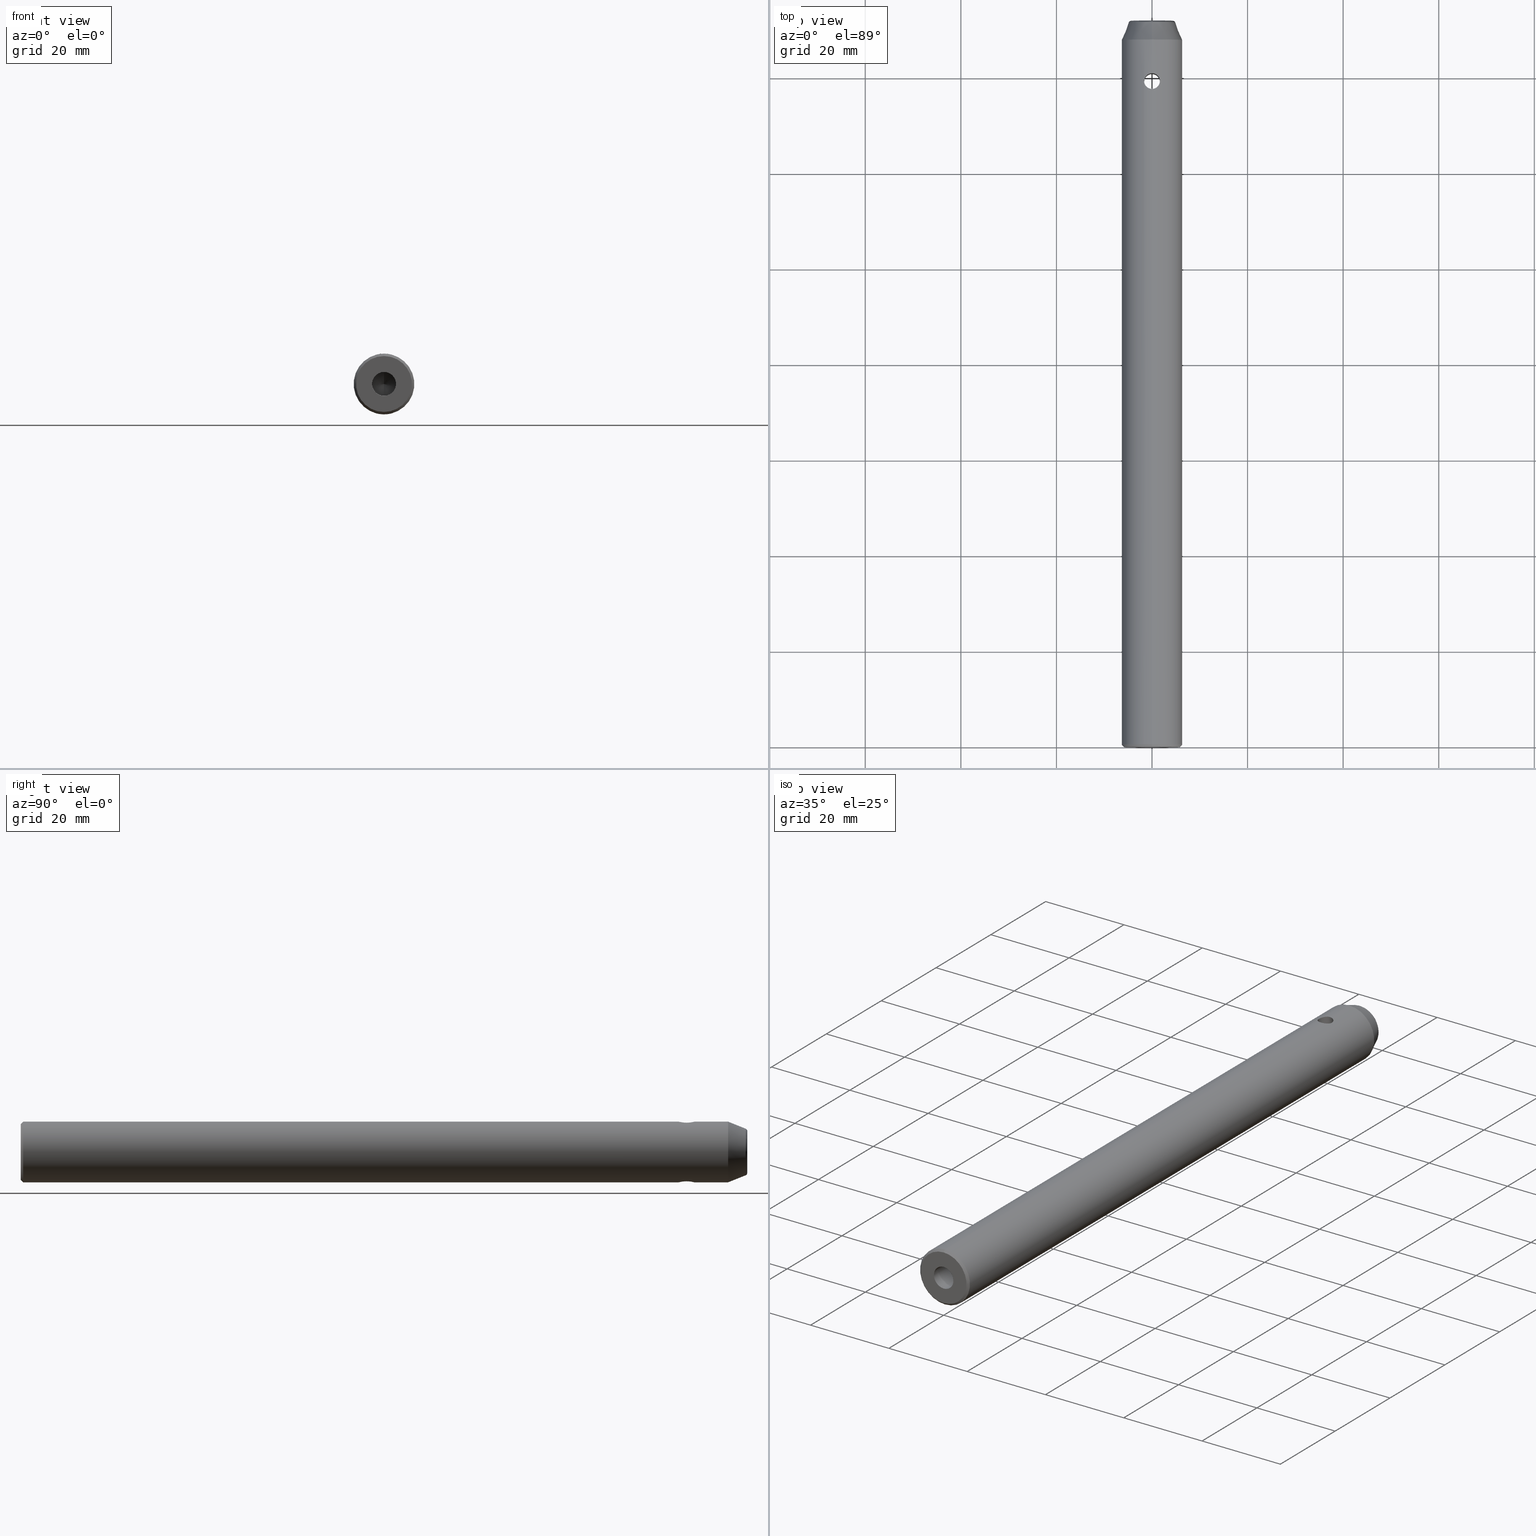
[diagram: canonical four-view strip — front | top / right | iso, engineering-drawing reading convention]
A machine part, canonical four-view strip (front | top / right | iso — engineering-drawing reading convention). The complete STEP part file that produces these views, byte-faithful:
ISO-10303-21;
HEADER;
FILE_DESCRIPTION (( 'STEP AP214' ),
    '1' );
FILE_NAME ('524206.STEP',
    '2019-10-14T06:48:36',
    ( '' ),
    ( '' ),
    'SwSTEP 2.0',
    'SolidWorks 2016',
    '' );
FILE_SCHEMA (( 'AUTOMOTIVE_DESIGN' ));
ENDSEC;

DATA;
#1 = DIRECTION ( 'NONE',  ( -0.0000000000000000000, -1.000000000000000000, -0.0000000000000000000 ) ) ;
#2 = EDGE_CURVE ( 'NONE', #414, #447, #711, .T. ) ;
#3 = CARTESIAN_POINT ( 'NONE',  ( 1.650000000000003200, 139.4087910117356200, -6.131883886702357100 ) ) ;
#4 = DIRECTION ( 'NONE',  ( 0.0000000000000000000, 0.0000000000000000000, -1.000000000000000000 ) ) ;
#5 = DIRECTION ( 'NONE',  ( 0.0000000000000000000, 0.0000000000000000000, 1.000000000000000000 ) ) ;
#6 = CARTESIAN_POINT ( 'NONE',  ( 5.971037175196334700E-016, 151.6856953381301000, -4.875721864747943900 ) ) ;
#7 = VERTEX_POINT ( 'NONE', #246 ) ;
#8 = FILL_AREA_STYLE_COLOUR ( '', #250 ) ;
#9 = CIRCLE ( 'NONE', #486, 2.499999999999998200 ) ;
#10 = CARTESIAN_POINT ( 'NONE',  ( 1.639344959258787400, 139.5161681699940200, -6.134779892737518600 ) ) ;
#11 = CARTESIAN_POINT ( 'NONE',  ( -0.06477149261906473000, 140.9487305472562500, 0.01816812792747605700 ) ) ;
#12 = ORIENTED_EDGE ( 'NONE', *, *, #230, .T. ) ;
#13 = FILL_AREA_STYLE ('',( #8 ) ) ;
#14 = CARTESIAN_POINT ( 'NONE',  ( 1.877513030099347800E-013, 140.9500000000000700, 0.06893449175514701500 ) ) ;
#15 = CARTESIAN_POINT ( 'NONE',  ( -1.650000000000003200, 139.5159074412738400, 6.131883886702358800 ) ) ;
#16 = EDGE_CURVE ( 'NONE', #69, #550, #342, .T. ) ;
#17 = PLANE ( 'NONE',  #172 ) ;
#18 = CARTESIAN_POINT ( 'NONE',  ( -0.06636096367055015200, 140.9486650061238900, 0.01035010491509570600 ) ) ;
#19 = AXIS2_PLACEMENT_3D ( 'NONE', #581, #395, #84 ) ;
#20 = CARTESIAN_POINT ( 'NONE',  ( -6.974444811417583500E-013, 137.6499999999935300, 6.350000000001686300 ) ) ;
#21 = CARTESIAN_POINT ( 'NONE',  ( 5.660994683692307100E-016, 152.0000000000000000, -4.622552957827277700 ) ) ;
#22 = ORIENTED_EDGE ( 'NONE', *, *, #393, .F. ) ;
#23 = CARTESIAN_POINT ( 'NONE',  ( 0.0000000000000000000, 0.0000000000000000000, 0.0000000000000000000 ) ) ;
#24 = ORIENTED_EDGE ( 'NONE', *, *, #393, .T. ) ;
#25 = CARTESIAN_POINT ( 'NONE',  ( 1.650000000000003900, 139.3000000000000100, -6.131883886702356200 ) ) ;
#26 = DIRECTION ( 'NONE',  ( -0.0000000000000000000, -1.000000000000000000, -0.0000000000000000000 ) ) ;
#27 = DIRECTION ( 'NONE',  ( 0.0000000000000000000, 0.0000000000000000000, -1.000000000000000000 ) ) ;
#28 = CARTESIAN_POINT ( 'NONE',  ( 0.8311828309225174300, 137.8585364440803900, 6.298525340911069700 ) ) ;
#29 = DIRECTION ( 'NONE',  ( 0.0000000000000000000, 1.000000000000000000, 0.0000000000000000000 ) ) ;
#30 = CARTESIAN_POINT ( 'NONE',  ( 5.402509171385550600E-016, 152.0000000000000000, -4.411483519286530700 ) ) ;
#31 = CARTESIAN_POINT ( 'NONE',  ( 0.0000000000000000000, 0.0000000000000000000, 0.0000000000000000000 ) ) ;
#32 = ORIENTED_EDGE ( 'NONE', *, *, #185, .T. ) ;
#33 = VECTOR ( 'NONE', #128, 1000.000000000000000 ) ;
#34 = DIRECTION ( 'NONE',  ( 0.0000000000000000000, -0.0000000000000000000, 1.000000000000000000 ) ) ;
#35 = ORIENTED_EDGE ( 'NONE', *, *, #266, .T. ) ;
#36 = EDGE_CURVE ( 'NONE', #552, #738, #483, .T. ) ;
#37 = CARTESIAN_POINT ( 'NONE',  ( 7.776507174585692200E-016, 152.0000000000000000, 6.349999999999999600 ) ) ;
#38 = CARTESIAN_POINT ( 'NONE',  ( 0.04795500247754052500, 140.9493029793635200, 0.04789253005439229200 ) ) ;
#39 = ADVANCED_FACE ( 'NONE', ( #785 ), #164, .T. ) ;
#40 = CARTESIAN_POINT ( 'NONE',  ( 2.020667218593131000E-016, 152.0000000000000000, -1.649999999999998600 ) ) ;
#41 = CONICAL_SURFACE ( 'NONE', #65, 6.349999999969213600, 0.3805063771123649000 ) ;
#42 = CARTESIAN_POINT ( 'NONE',  ( -1.650000000000003000, 139.1920627159405200, 6.131883886702356200 ) ) ;
#43 = DIRECTION ( 'NONE',  ( -0.0000000000000000000, -1.000000000000000000, -0.0000000000000000000 ) ) ;
#44 = CARTESIAN_POINT ( 'NONE',  ( 0.02939287082061566700, 140.9497381789680900, 0.06187194578198632700 ) ) ;
#45 = ORIENTED_EDGE ( 'NONE', *, *, #230, .F. ) ;
#46 = ORIENTED_EDGE ( 'NONE', *, *, #788, .T. ) ;
#47 = CARTESIAN_POINT ( 'NONE',  ( 7.776507174597243100E-016, 0.4999999999999726900, -6.350000000009431200 ) ) ;
#48 = EDGE_LOOP ( 'NONE', ( #673, #224, #555, #771 ) ) ;
#49 = CARTESIAN_POINT ( 'NONE',  ( -0.8281761633611045600, 140.7311634706439600, -6.296412476666372300 ) ) ;
#50 = EDGE_CURVE ( 'NONE', #493, #484, #801, .T. ) ;
#51 = VERTEX_POINT ( 'NONE', #311 ) ;
#52 = SURFACE_STYLE_USAGE ( .BOTH. , #117 ) ;
#53 = CIRCLE ( 'NONE', #153, 1.649999999983720000 ) ;
#54 = FACE_OUTER_BOUND ( 'NONE', #757, .T. ) ;
#55 = CARTESIAN_POINT ( 'NONE',  ( 1.639209318810495900, 139.5173356914322400, 6.134816686754134300 ) ) ;
#56 = FACE_OUTER_BOUND ( 'NONE', #501, .T. ) ;
#57 =( NAMED_UNIT ( * ) SI_UNIT ( $, .STERADIAN. ) SOLID_ANGLE_UNIT ( ) );
#58 = EDGE_CURVE ( 'NONE', #477, #762, #92, .T. ) ;
#59 = ORIENTED_EDGE ( 'NONE', *, *, #730, .F. ) ;
#60 = EDGE_LOOP ( 'NONE', ( #88, #194 ) ) ;
#61 = STYLED_ITEM ( 'NONE', ( #157 ), #418 ) ;
#62 = EDGE_LOOP ( 'NONE', ( #132, #197, #79, #12 ) ) ;
#63 = ORIENTED_EDGE ( 'NONE', *, *, #570, .F. ) ;
#64 = CARTESIAN_POINT ( 'NONE',  ( -1.007005038130155600, 137.9885294865501400, -6.270292001546161800 ) ) ;
#65 = AXIS2_PLACEMENT_3D ( 'NONE', #167, #661, #159 ) ;
#66 = DIRECTION ( 'NONE',  ( 0.0000000000000000000, 0.0000000000000000000, -1.000000000000000000 ) ) ;
#67 = ORIENTED_EDGE ( 'NONE', *, *, #363, .F. ) ;
#68 = CARTESIAN_POINT ( 'NONE',  ( 0.8329576689541471300, 140.7404759789549800, -6.298295562567704000 ) ) ;
#69 = VERTEX_POINT ( 'NONE', #773 ) ;
#70 = DIRECTION ( 'NONE',  ( 4.548224030302236500E-017, -0.9284766908852593000, 0.3713906763541036700 ) ) ;
#71 = DIRECTION ( 'NONE',  ( 1.000000000000000000, 0.0000000000000000000, 0.0000000000000000000 ) ) ;
#72 = CARTESIAN_POINT ( 'NONE',  ( -0.05057760304071892700, 140.9492246378437100, 0.04491799867503555600 ) ) ;
#73 =( NAMED_UNIT ( * ) SI_UNIT ( $, .STERADIAN. ) SOLID_ANGLE_UNIT ( ) );
#74 = CARTESIAN_POINT ( 'NONE',  ( 1.318491683776829500, 140.3148354435902500, -6.213514843919348600 ) ) ;
#75 = CARTESIAN_POINT ( 'NONE',  ( -0.008427006151905619100, 140.9499951570975600, -0.06881049955630784400 ) ) ;
#76 = CARTESIAN_POINT ( 'NONE',  ( -1.482631616215294800, 140.0320397076817200, 6.174634385605513000 ) ) ;
#77 = LINE ( 'NONE', #152, #218 ) ;
#78 = CARTESIAN_POINT ( 'NONE',  ( -0.05539182305297560300, 140.9490769977326200, 0.03912716115802093700 ) ) ;
#79 = ORIENTED_EDGE ( 'NONE', *, *, #214, .T. ) ;
#80 = DIRECTION ( 'NONE',  ( -0.0000000000000000000, 1.000000000000000000, 0.0000000000000000000 ) ) ;
#81 = CARTESIAN_POINT ( 'NONE',  ( -1.132198936738461400E-015, 152.0000000000000000, 4.622552957827277700 ) ) ;
#82 = CARTESIAN_POINT ( 'NONE',  ( 5.875038065977266200E-016, 151.8816683919813200, -4.797332643230437700 ) ) ;
#83 = PLANE ( 'NONE',  #611 ) ;
#84 = DIRECTION ( 'NONE',  ( 0.0000000000000000000, 0.0000000000000000000, 1.000000000000000000 ) ) ;
#85 = AXIS2_PLACEMENT_3D ( 'NONE', #768, #26, #702 ) ;
#86 = CARTESIAN_POINT ( 'NONE',  ( 0.0000000000000000000, 148.0000000000814000, 0.0000000000000000000 ) ) ;
#87 = DIRECTION ( 'NONE',  ( 0.0000000000000000000, 0.0000000000000000000, -1.000000000000000000 ) ) ;
#88 = ORIENTED_EDGE ( 'NONE', *, *, #680, .F. ) ;
#89 = CARTESIAN_POINT ( 'NONE',  ( -0.1081261642684567500, 137.6500000000001500, 6.349999999999978300 ) ) ;
#90 = EDGE_CURVE ( 'NONE', #302, #353, #564, .T. ) ;
#91 = LINE ( 'NONE', #124, #613 ) ;
#92 = CIRCLE ( 'NONE', #783, 6.349999999999999600 ) ;
#93 = CARTESIAN_POINT ( 'NONE',  ( 8.822967038573057900, 152.0000000000000000, -4.411483519286528900 ) ) ;
#94 = CARTESIAN_POINT ( 'NONE',  ( -0.2179758374209905000, 137.6608947551608000, 6.347144642644349400 ) ) ;
#95 = CARTESIAN_POINT ( 'NONE',  ( -0.5338866542031250900, 140.8649781437913200, -6.328311955744354100 ) ) ;
#96 = DIRECTION ( 'NONE',  ( 0.0000000000000000000, -1.000000000000000000, 0.0000000000000000000 ) ) ;
#97 = AXIS2_PLACEMENT_3D ( 'NONE', #750, #502, #510 ) ;
#98 = CARTESIAN_POINT ( 'NONE',  ( 0.03629933883413510200, 140.9496151285806300, 0.05836423652548827100 ) ) ;
#99 = ORIENTED_EDGE ( 'NONE', *, *, #607, .T. ) ;
#100 = ORIENTED_EDGE ( 'NONE', *, *, #626, .T. ) ;
#101 = CARTESIAN_POINT ( 'NONE',  ( -8.822967038573057900, 152.0000000000000000, -4.411483519286531600 ) ) ;
#102 = ORIENTED_EDGE ( 'NONE', *, *, #534, .F. ) ;
#103 = CARTESIAN_POINT ( 'NONE',  ( 0.02271055153664082400, 140.9498572357675200, 0.06526581268492294400 ) ) ;
#104 = EDGE_CURVE ( 'NONE', #447, #669, #400, .T. ) ;
#105 = EDGE_LOOP ( 'NONE', ( #744, #236, #505, #746 ) ) ;
#106 = CARTESIAN_POINT ( 'NONE',  ( 0.5334774331399363400, 140.8650883997475200, 6.328340545610156900 ) ) ;
#107 = AXIS2_PLACEMENT_3D ( 'NONE', #31, #80, #270 ) ;
#108 = CARTESIAN_POINT ( 'NONE',  ( 0.0000000000000000000, 140.9500000000000200, -6.349999999999999600 ) ) ;
#109 = CARTESIAN_POINT ( 'NONE',  ( -1.596663809953354100, 138.8699863015438300, 6.146027032909197300 ) ) ;
#110 = DIRECTION ( 'NONE',  ( 0.0000000000000000000, 0.0000000000000000000, 1.000000000000000000 ) ) ;
#111 = LINE ( 'NONE', #566, #795 ) ;
#112 = ADVANCED_FACE ( 'NONE', ( #54 ), #540, .F. ) ;
#113 = ORIENTED_EDGE ( 'NONE', *, *, #281, .T. ) ;
#114 = APPLICATION_PROTOCOL_DEFINITION ( 'draft international standard', 'automotive_design', 1998, #670 ) ;
#115 = AXIS2_PLACEMENT_3D ( 'NONE', #385, #770, #392 ) ;
#116 = ADVANCED_FACE ( 'NONE', ( #423 ), #242, .F. ) ;
#117 = SURFACE_SIDE_STYLE ('',( #575 ) ) ;
#118 = ORIENTED_EDGE ( 'NONE', *, *, #416, .F. ) ;
#119 =( LENGTH_UNIT ( ) NAMED_UNIT ( * ) SI_UNIT ( .MILLI., .METRE. ) );
#120 = FACE_OUTER_BOUND ( 'NONE', #800, .T. ) ;
#121 = PRESENTATION_STYLE_ASSIGNMENT (( #52 ) ) ;
#122 = EDGE_LOOP ( 'NONE', ( #554, #708, #148, #420 ) ) ;
#123 = CARTESIAN_POINT ( 'NONE',  ( -1.639106060326593700, 139.0820324534507800, -6.134844145553196300 ) ) ;
#124 = CARTESIAN_POINT ( 'NONE',  ( 0.0000000000000000000, 152.0000000000000000, -6.349999999999999600 ) ) ;
#125 = AXIS2_PLACEMENT_3D ( 'NONE', #201, #394, #87 ) ;
#126 = CARTESIAN_POINT ( 'NONE',  ( -0.1079389430111871400, 137.6500000000000600, -6.349999999999999600 ) ) ;
#127 = EDGE_CURVE ( 'NONE', #412, #574, #547, .T. ) ;
#128 = DIRECTION ( 'NONE',  ( 0.0000000000000000000, 0.5150380749282503800, 0.8571673006911789700 ) ) ;
#129 = DIRECTION ( 'NONE',  ( 0.0000000000000000000, 1.000000000000000000, 0.0000000000000000000 ) ) ;
#130 = DIRECTION ( 'NONE',  ( -0.0000000000000000000, -1.000000000000000000, -0.0000000000000000000 ) ) ;
#131 = CARTESIAN_POINT ( 'NONE',  ( 5.402509171385550600E-016, 152.0000000000000000, -4.411483519286530700 ) ) ;
#132 = ORIENTED_EDGE ( 'NONE', *, *, #714, .F. ) ;
#133 = CARTESIAN_POINT ( 'NONE',  ( 0.0000000000000000000, 140.9500000000000200, -6.349999999999999600 ) ) ;
#134 = EDGE_LOOP ( 'NONE', ( #249, #274, #653 ) ) ;
#135 = AXIS2_PLACEMENT_3D ( 'NONE', #389, #772, #272 ) ;
#136 = DIRECTION ( 'NONE',  ( 0.0000000000000000000, 0.0000000000000000000, 1.000000000000000000 ) ) ;
#137 = CARTESIAN_POINT ( 'NONE',  ( -1.430937917797910700, 140.1285587685285600, 6.186976712326952600 ) ) ;
#138 = CARTESIAN_POINT ( 'NONE',  ( 7.294888503011075700E-016, 140.9500000000000200, 6.350000000000000500 ) ) ;
#139 = DIRECTION ( 'NONE',  ( 0.0000000000000000000, -1.000000000000000000, 0.0000000000000000000 ) ) ;
#140 = CARTESIAN_POINT ( 'NONE',  ( 8.822967038573057900, 152.0000000000000000, 4.411483519286530700 ) ) ;
#141 = CARTESIAN_POINT ( 'NONE',  ( -0.01593045959161378700, 140.9499376946409100, -0.06737143835014892900 ) ) ;
#142 = ORIENTED_EDGE ( 'NONE', *, *, #322, .T. ) ;
#143 = PRODUCT_DEFINITION_SHAPE ( 'NONE', 'NONE',  #380 ) ;
#144 = FACE_OUTER_BOUND ( 'NONE', #725, .T. ) ;
#145 = CARTESIAN_POINT ( 'NONE',  ( 2.477007465175872600E-021, 137.6500000000000100, -6.349999999999999600 ) ) ;
#146 = DIRECTION ( 'NONE',  ( 0.0000000000000000000, 0.0000000000000000000, 1.000000000000000000 ) ) ;
#147 = LINE ( 'NONE', #162, #425 ) ;
#148 = ORIENTED_EDGE ( 'NONE', *, *, #462, .T. ) ;
#149 = CONICAL_SURFACE ( 'NONE', #402, 1.649999999756346400, 1.029744258655426200 ) ;
#150 = DIRECTION ( 'NONE',  ( 8.659560562354931600E-017, 0.7071067811865475700, -0.7071067811865474600 ) ) ;
#151 = CARTESIAN_POINT ( 'NONE',  ( 0.2159147241639700600, 137.6500000000000300, -6.350000000000001400 ) ) ;
#152 = CARTESIAN_POINT ( 'NONE',  ( 0.0000000000000000000, 0.4999999999881765700, 6.349999999997635300 ) ) ;
#153 = AXIS2_PLACEMENT_3D ( 'NONE', #804, #685, #259 ) ;
#154 = CARTESIAN_POINT ( 'NONE',  ( 0.0000000000000000000, 147.9999999999999100, 0.0000000000000000000 ) ) ;
#155 = EDGE_LOOP ( 'NONE', ( #668, #160, #59, #287 ) ) ;
#156 = CARTESIAN_POINT ( 'NONE',  ( -1.091608024218053900, 140.5419239163841500, -6.255943415907575300 ) ) ;
#157 = PRESENTATION_STYLE_ASSIGNMENT (( #198 ) ) ;
#158 = CONICAL_SURFACE ( 'NONE', #436, 6.349999999969213600, 0.3805063771123649000 ) ;
#159 = DIRECTION ( 'NONE',  ( 0.0000000000000000000, 0.0000000000000000000, -1.000000000000000000 ) ) ;
#160 = ORIENTED_EDGE ( 'NONE', *, *, #349, .T. ) ;
#161 = CARTESIAN_POINT ( 'NONE',  ( -1.650000000000002800, 139.3000000000000100, 6.131883886702356200 ) ) ;
#162 = CARTESIAN_POINT ( 'NONE',  ( 3.061616997868381200E-016, 0.0000000000000000000, 2.499999999999998200 ) ) ;
#163 = CARTESIAN_POINT ( 'NONE',  ( -1.639194538816096000, 139.0825411147130800, 6.134820688103353300 ) ) ;
#164 =( BOUNDED_SURFACE ( )  B_SPLINE_SURFACE ( 3, 3, ( 
 ( #131, #755, #751, #641 ),
 ( #21, #439, #683, #81 ),
 ( #579, #316, #635, #376 ),
 ( #6, #435, #567, #688 ) ),
 .UNSPECIFIED., .F., .F., .T. ) 
 B_SPLINE_SURFACE_WITH_KNOTS ( ( 4, 4 ),
 ( 4, 4 ),
 ( 0.0000000000000000000, 1.000000000000000000 ),
 ( 0.0000000000000000000, 1.000000000000000000 ),
 .UNSPECIFIED. ) 
 GEOMETRIC_REPRESENTATION_ITEM ( )  RATIONAL_B_SPLINE_SURFACE ( (
 ( 1.000000000000000000, 0.3333333333333334300, 0.3333333333333334300, 1.000000000000000000),
 ( 0.8853781536272783400, 0.2951260512090928500, 0.2951260512090928500, 0.8853781536272783400),
 ( 0.8853781536272783400, 0.2951260512090928500, 0.2951260512090928500, 0.8853781536272783400),
 ( 1.000000000000000000, 0.3333333333333334300, 0.3333333333333334300, 1.000000000000000000) ) ) 
 REPRESENTATION_ITEM ( '' )  SURFACE ( )  );
#165 = CARTESIAN_POINT ( 'NONE',  ( 7.776507174587908900E-016, 147.9999999999999100, 6.350000000001809800 ) ) ;
#166 = DIRECTION ( 'NONE',  ( 0.0000000000000000000, 0.0000000000000000000, -1.000000000000000000 ) ) ;
#167 = CARTESIAN_POINT ( 'NONE',  ( 0.0000000000000000000, 148.0000000000814000, 0.0000000000000000000 ) ) ;
#168 = LINE ( 'NONE', #379, #487 ) ;
#169 = DIRECTION ( 'NONE',  ( 0.0000000000000000000, 1.000000000000000000, 0.0000000000000000000 ) ) ;
#170 = ORIENTED_EDGE ( 'NONE', *, *, #58, .T. ) ;
#171 = CARTESIAN_POINT ( 'NONE',  ( 5.402509171385550600E-016, 152.0000000000000000, -4.411483519286530700 ) ) ;
#172 = AXIS2_PLACEMENT_3D ( 'NONE', #569, #199, #690 ) ;
#173 =( BOUNDED_CURVE ( )  B_SPLINE_CURVE ( 3, ( #460, #93, #140, #331 ),
 .UNSPECIFIED., .F., .F. ) 
 B_SPLINE_CURVE_WITH_KNOTS ( ( 4, 4 ),
 ( 0.5000000000000000000, 1.000000000000000000 ),
 .UNSPECIFIED. ) 
 CURVE ( )  GEOMETRIC_REPRESENTATION_ITEM ( )  RATIONAL_B_SPLINE_CURVE ( ( 1.000000000000000000, 0.3333333333333333700, 0.3333333333333333700, 1.000000000000000000 ) ) 
 REPRESENTATION_ITEM ( '' )  );
#174 = ORIENTED_EDGE ( 'NONE', *, *, #363, .T. ) ;
#175 = CYLINDRICAL_SURFACE ( 'NONE', #642, 2.499999999999998200 ) ;
#176 = ADVANCED_FACE ( 'NONE', ( #374 ), #175, .F. ) ;
#177 = B_SPLINE_CURVE_WITH_KNOTS ( 'NONE', 3,
 ( #20, #89, #94, #275, #523, #213, #533, #475, #600, #543, #219, #718, #109, #163, #42, #161 ),
 .UNSPECIFIED., .F., .F.,
 ( 4, 2, 2, 2, 2, 2, 2, 4 ),
 ( 0.002591141465369753900, 0.002914863869972949800, 0.003238586274576145600, 0.003886031083782505100, 0.004209753488385656700, 0.004533475892988806500, 0.004857198297591958100, 0.005180920702195108800 ),
 .UNSPECIFIED. ) ;
#178 =( NAMED_UNIT ( * ) PLANE_ANGLE_UNIT ( ) SI_UNIT ( $, .RADIAN. ) );
#179 = AXIS2_PLACEMENT_3D ( 'NONE', #284, #96, #544 ) ;
#180 = DIRECTION ( 'NONE',  ( 0.0000000000000000000, 0.0000000000000000000, 1.000000000000000000 ) ) ;
#181 = AXIS2_PLACEMENT_3D ( 'NONE', #377, #130, #687 ) ;
#182 = DIRECTION ( 'NONE',  ( -0.0000000000000000000, -1.000000000000000000, -0.0000000000000000000 ) ) ;
#183 = ORIENTED_EDGE ( 'NONE', *, *, #592, .T. ) ;
#184 = CARTESIAN_POINT ( 'NONE',  ( -0.7320081022328510700, 137.8173399076216300, -6.308460464966564100 ) ) ;
#185 = EDGE_CURVE ( 'NONE', #51, #477, #77, .T. ) ;
#186 = CARTESIAN_POINT ( 'NONE',  ( -0.009372967773493223700, 140.9499796865097200, 0.06841989512368641700 ) ) ;
#187 = CARTESIAN_POINT ( 'NONE',  ( 0.0000000000000000000, 147.9999999999999100, 0.0000000000000000000 ) ) ;
#188 = AXIS2_PLACEMENT_3D ( 'NONE', #532, #598, #656 ) ;
#189 = DIRECTION ( 'NONE',  ( 0.0000000000000000000, -1.000000000000000000, 0.0000000000000000000 ) ) ;
#190 = CARTESIAN_POINT ( 'NONE',  ( 0.4298634471662813300, 140.8967031799936600, -6.336326912732535500 ) ) ;
#191 = AXIS2_PLACEMENT_3D ( 'NONE', #689, #756, #506 ) ;
#192 = DIRECTION ( 'NONE',  ( 0.0000000000000000000, 0.0000000000000000000, 1.000000000000000000 ) ) ;
#193 = LINE ( 'NONE', #499, #33 ) ;
#194 = ORIENTED_EDGE ( 'NONE', *, *, #626, .F. ) ;
#195 = CARTESIAN_POINT ( 'NONE',  ( 0.0000000000000000000, 0.4999999999999726900, 6.350000000009431200 ) ) ;
#196 = CARTESIAN_POINT ( 'NONE',  ( -0.04023626172857783900, 140.9495211289859600, 0.05547275317515428700 ) ) ;
#197 = ORIENTED_EDGE ( 'NONE', *, *, #104, .F. ) ;
#198 = SURFACE_STYLE_USAGE ( .BOTH. , #321 ) ;
#199 = DIRECTION ( 'NONE',  ( 0.0000000000000000000, 1.000000000000000000, 0.0000000000000000000 ) ) ;
#200 = CARTESIAN_POINT ( 'NONE',  ( -0.06199473040216668700, 140.9488356485158000, -0.02592253564130472100 ) ) ;
#201 = CARTESIAN_POINT ( 'NONE',  ( 0.0000000000000000000, 0.0000000000000000000, 0.0000000000000000000 ) ) ;
#202 = CARTESIAN_POINT ( 'NONE',  ( -1.243166558392558400, 140.3902366513591700, 6.227601864458365300 ) ) ;
#203 = CARTESIAN_POINT ( 'NONE',  ( -1.650000000000002800, 139.3000000000000100, 6.131883886702356200 ) ) ;
#204 = CARTESIAN_POINT ( 'NONE',  ( -0.0006724260865990330100, 140.9499998972276600, -0.06893186092605431400 ) ) ;
#205 = ORIENTED_EDGE ( 'NONE', *, *, #253, .F. ) ;
#206 = ORIENTED_EDGE ( 'NONE', *, *, #799, .T. ) ;
#207 = CONICAL_SURFACE ( 'NONE', #292, 1.649999999756346400, 1.029744258655426200 ) ;
#208 = CARTESIAN_POINT ( 'NONE',  ( -0.03399965952729973300, 140.9496496667935300, 0.05929538277292755600 ) ) ;
#209 = CARTESIAN_POINT ( 'NONE',  ( 8.822967038573059600, 152.0000000000000000, -4.411483519286529800 ) ) ;
#210 = DIRECTION ( 'NONE',  ( 1.000000000000000000, 0.0000000000000000000, 0.0000000000000000000 ) ) ;
#211 = DIRECTION ( 'NONE',  ( -0.0000000000000000000, -1.000000000000000000, -0.0000000000000000000 ) ) ;
#212 = CARTESIAN_POINT ( 'NONE',  ( -6.974444811417583500E-013, 137.6499999999935300, 6.350000000001686300 ) ) ;
#213 = CARTESIAN_POINT ( 'NONE',  ( -0.8334608514834981300, 137.8595485784398700, 6.298283451494391700 ) ) ;
#214 = EDGE_CURVE ( 'NONE', #447, #695, #608, .T. ) ;
#215 = ORIENTED_EDGE ( 'NONE', *, *, #298, .F. ) ;
#216 = FACE_OUTER_BOUND ( 'NONE', #371, .T. ) ;
#217 = CARTESIAN_POINT ( 'NONE',  ( 0.0000000000000000000, 141.8999999999073200, 0.0000000000000000000 ) ) ;
#218 = VECTOR ( 'NONE', #591, 1000.000000000000000 ) ;
#219 = CARTESIAN_POINT ( 'NONE',  ( -1.482696713118847500, 138.5680693405207400, 6.174619057269595100 ) ) ;
#220 = CARTESIAN_POINT ( 'NONE',  ( 3.061616997914722800E-016, 11.00000000000000000, 2.500000000037839100 ) ) ;
#221 = CARTESIAN_POINT ( 'NONE',  ( 0.06093657560026256900, 140.9488743838613500, 0.02799878300026634500 ) ) ;
#222 = ADVANCED_FACE ( 'NONE', ( #360 ), #672, .T. ) ;
#223 = DIRECTION ( 'NONE',  ( -0.0000000000000000000, -1.000000000000000000, -0.0000000000000000000 ) ) ;
#224 = ORIENTED_EDGE ( 'NONE', *, *, #416, .T. ) ;
#225 = CARTESIAN_POINT ( 'NONE',  ( 0.02046706599017830000, 140.9498730554832900, -0.06560472741551468000 ) ) ;
#226 = ORIENTED_EDGE ( 'NONE', *, *, #2, .T. ) ;
#227 = EDGE_LOOP ( 'NONE', ( #265, #226, #807 ) ) ;
#228 = ORIENTED_EDGE ( 'NONE', *, *, #730, .T. ) ;
#229 = ADVANCED_FACE ( 'NONE', ( #528 ), #158, .T. ) ;
#230 = EDGE_CURVE ( 'NONE', #695, #282, #9, .T. ) ;
#231 = CARTESIAN_POINT ( 'NONE',  ( 0.06652693946440033100, 140.9486582927718800, 0.004822712364433576000 ) ) ;
#232 = ADVANCED_FACE ( 'NONE', ( #651 ), #301, .T. ) ;
#233 = AXIS2_PLACEMENT_3D ( 'NONE', #594, #733, #609 ) ;
#234 = VERTEX_POINT ( 'NONE', #456 ) ;
#235 = VECTOR ( 'NONE', #693, 1000.000000000000100 ) ;
#236 = ORIENTED_EDGE ( 'NONE', *, *, #560, .T. ) ;
#237 = AXIS2_PLACEMENT_3D ( 'NONE', #260, #382, #136 ) ;
#238 = FILL_AREA_STYLE ('',( #485 ) ) ;
#239 = B_SPLINE_CURVE_WITH_KNOTS ( 'NONE', 3,
 ( #707, #396, #792, #225, #536, #724, #727, #352, #605, #345, #784, #405, #468, #406, #470, #231, #596, #662, #221, #294, #280, #38, #347, #98, #44, #103, #657, #655, #290, #411, #716 ),
 .UNSPECIFIED., .F., .F.,
 ( 4, 3, 3, 3, 3, 3, 3, 3, 3, 3, 4 ),
 ( 6.933915010967727300E-005, 9.006218895269565900E-005, 0.0001117278782163782100, 0.0001338289606230497500, 0.0001566356011499649500, 0.0001801127263158380500, 0.0002039603814676531400, 0.0002277329918609916400, 0.0002509885574766643400, 0.0002734797465825677200, 0.0002813343661523556100 ),
 .UNSPECIFIED. ) ;
#240 = CARTESIAN_POINT ( 'NONE',  ( 1.564557525369210300, 139.8350021183788400, 6.154386527759380800 ) ) ;
#241 =( NAMED_UNIT ( * ) SI_UNIT ( $, .STERADIAN. ) SOLID_ANGLE_UNIT ( ) );
#242 = CYLINDRICAL_SURFACE ( 'NONE', #19, 1.649999999999998600 ) ;
#243 = ORIENTED_EDGE ( 'NONE', *, *, #534, .T. ) ;
#244 = CARTESIAN_POINT ( 'NONE',  ( -0.004672885307113128200, 140.9500000000000200, 0.06893449175365651300 ) ) ;
#245 = CARTESIAN_POINT ( 'NONE',  ( -1.650000000000002800, 139.3000000000000100, -6.349999999999999600 ) ) ;
#246 = CARTESIAN_POINT ( 'NONE',  ( 7.470345474810422000E-016, 0.0000000000000000000, -5.850000000009458700 ) ) ;
#247 = B_SPLINE_CURVE_WITH_KNOTS ( 'NONE', 3,
 ( #318, #3, #10, #627, #754, #511, #74, #324, #68, #257, #190, #445, #508, #133 ),
 .UNSPECIFIED., .F., .F.,
 ( 4, 2, 2, 2, 2, 2, 4 ),
 ( 0.007771194966038250600, 0.008094862658375981700, 0.008418530350713712000, 0.009065865735389172500, 0.009713201120064633000, 0.01003686881240236300, 0.01036053650474009400 ),
 .UNSPECIFIED. ) ;
#248 = CARTESIAN_POINT ( 'NONE',  ( 0.0000000000000000000, 151.6856953381307000, -4.875721864749493800 ) ) ;
#249 = ORIENTED_EDGE ( 'NONE', *, *, #2, .F. ) ;
#250 = COLOUR_RGB ( '',1.000000000000000000, 1.000000000000000000, 1.000000000000000000 ) ;
#251 = ORIENTED_EDGE ( 'NONE', *, *, #645, .F. ) ;
#252 = CARTESIAN_POINT ( 'NONE',  ( 0.0000000000000000000, 0.4999999999881765700, 0.0000000000000000000 ) ) ;
#253 = EDGE_CURVE ( 'NONE', #7, #762, #633, .T. ) ;
#254 = CARTESIAN_POINT ( 'NONE',  ( 1.596964358350171800, 138.8712311694286000, 6.145948398194503800 ) ) ;
#255 = B_SPLINE_CURVE_WITH_KNOTS ( 'NONE', 3,
 ( #722, #781, #786, #471, #106, #291, #351, #791, #415, #240, #610, #55, #614, #490 ),
 .UNSPECIFIED., .F., .F.,
 ( 4, 2, 2, 2, 2, 2, 4 ),
 ( 0.007771094307911123800, 0.008094760523536432400, 0.008418426739161741900, 0.009065759170412329700, 0.009713091601662917500, 0.01003675781728824800, 0.01036042403291358000 ),
 .UNSPECIFIED. ) ;
#256 = DIRECTION ( 'NONE',  ( 0.0000000000000000000, 0.0000000000000000000, -1.000000000000000000 ) ) ;
#257 = CARTESIAN_POINT ( 'NONE',  ( 0.5350354595222439600, 140.8645476784386400, -6.328206572559572900 ) ) ;
#258 = CARTESIAN_POINT ( 'NONE',  ( -0.04846968334696925100, 140.9492982378857600, -0.04797931995977487700 ) ) ;
#259 = DIRECTION ( 'NONE',  ( 0.0000000000000000000, 0.0000000000000000000, 1.000000000000000000 ) ) ;
#260 = CARTESIAN_POINT ( 'NONE',  ( 0.0000000000000000000, 152.0000000000000000, 0.0000000000000000000 ) ) ;
#261 = EDGE_LOOP ( 'NONE', ( #45, #612 ) ) ;
#262 = EDGE_LOOP ( 'NONE', ( #793, #630, #774, #350 ) ) ;
#263 = CARTESIAN_POINT ( 'NONE',  ( 1.639197571083346000, 139.0828152978113500, 6.134819328885311200 ) ) ;
#264 = CARTESIAN_POINT ( 'NONE',  ( -1.006670063915746900, 140.6117190249441600, 6.270344671252951600 ) ) ;
#265 = ORIENTED_EDGE ( 'NONE', *, *, #666, .F. ) ;
#266 = EDGE_CURVE ( 'NONE', #586, #493, #177, .T. ) ;
#267 = CARTESIAN_POINT ( 'NONE',  ( 6.873772174893070400E-016, 151.6856953381307000, 4.875721864749493800 ) ) ;
#268 = CARTESIAN_POINT ( 'NONE',  ( -0.04264173371752574100, 140.9494489026780000, -0.05299091665945557900 ) ) ;
#269 = CARTESIAN_POINT ( 'NONE',  ( 9.245105915654557200, 152.0000000000000000, -4.622552957827278600 ) ) ;
#270 = DIRECTION ( 'NONE',  ( 0.0000000000000000000, 0.0000000000000000000, 1.000000000000000000 ) ) ;
#271 = EDGE_CURVE ( 'NONE', #738, #552, #239, .T. ) ;
#272 = DIRECTION ( 'NONE',  ( 0.0000000000000000000, 0.0000000000000000000, 1.000000000000000000 ) ) ;
#273 = CARTESIAN_POINT ( 'NONE',  ( 0.0000000000000000000, 152.0000000000000000, 1.649999999999998600 ) ) ;
#274 = ORIENTED_EDGE ( 'NONE', *, *, #666, .T. ) ;
#275 = CARTESIAN_POINT ( 'NONE',  ( -0.4299124293967029900, 137.7033300991097300, 6.336318638089350600 ) ) ;
#276 = ORIENTED_EDGE ( 'NONE', *, *, #356, .T. ) ;
#277 = CARTESIAN_POINT ( 'NONE',  ( 0.0000000000000000000, 152.0000000000000000, 0.0000000000000000000 ) ) ;
#278 = CARTESIAN_POINT ( 'NONE',  ( 8.822967038573059600, 152.0000000000000000, 4.411483519286530700 ) ) ;
#279 = DIRECTION ( 'NONE',  ( 0.0000000000000000000, 0.0000000000000000000, 1.000000000000000000 ) ) ;
#280 = CARTESIAN_POINT ( 'NONE',  ( 0.05336199123666410900, 140.9491457661876600, 0.04210822258712426700 ) ) ;
#281 = EDGE_CURVE ( 'NONE', #762, #477, #285, .T. ) ;
#282 = VERTEX_POINT ( 'NONE', #341 ) ;
#283 =( BOUNDED_CURVE ( )  B_SPLINE_CURVE ( 3, ( #410, #603, #101, #663 ),
 .UNSPECIFIED., .F., .T. ) 
 B_SPLINE_CURVE_WITH_KNOTS ( ( 4, 4 ),
 ( 0.0000000000000000000, 0.5000000000000000000 ),
 .UNSPECIFIED. ) 
 CURVE ( )  GEOMETRIC_REPRESENTATION_ITEM ( )  RATIONAL_B_SPLINE_CURVE ( ( 1.000000000000000000, 0.3333333333333333700, 0.3333333333333333700, 1.000000000000000000 ) ) 
 REPRESENTATION_ITEM ( '' )  );
#284 = CARTESIAN_POINT ( 'NONE',  ( 0.0000000000000000000, 151.6856953381307000, 0.0000000000000000000 ) ) ;
#285 = CIRCLE ( 'NONE', #361, 6.349999999999999600 ) ;
#286 = ADVANCED_FACE ( 'NONE', ( #488 ), #761, .T. ) ;
#287 = ORIENTED_EDGE ( 'NONE', *, *, #90, .F. ) ;
#288 = LINE ( 'NONE', #37, #734 ) ;
#289 = DIRECTION ( 'NONE',  ( -0.0000000000000000000, -1.000000000000000000, -0.0000000000000000000 ) ) ;
#290 = CARTESIAN_POINT ( 'NONE',  ( 0.005275291418745005300, 140.9499936398345300, 0.06877223118536036900 ) ) ;
#291 = CARTESIAN_POINT ( 'NONE',  ( 0.8318674767962757100, 140.7411439844179000, 6.298449446695655300 ) ) ;
#292 = AXIS2_PLACEMENT_3D ( 'NONE', #539, #408, #717 ) ;
#293 = CARTESIAN_POINT ( 'NONE',  ( -0.4287914133757487200, 140.8969589792993400, -6.336391795622864400 ) ) ;
#294 = CARTESIAN_POINT ( 'NONE',  ( 0.05780636930486319400, 140.9489900652343100, 0.03527249475342493500 ) ) ;
#295 = CLOSED_SHELL ( 'NONE', ( #39, #232, #790, #354, #112, #720, #176, #116, #359, #286, #229, #348, #481, #222, #542, #664, #601, #654, #535, #299 ) ) ;
#296 = CIRCLE ( 'NONE', #769, 0.4999999999999995600 ) ;
#297 = CARTESIAN_POINT ( 'NONE',  ( 8.442012540421851700E-018, 140.9500000000000200, -0.06893449175363769400 ) ) ;
#298 = EDGE_CURVE ( 'NONE', #234, #731, #421, .T. ) ;
#299 = ADVANCED_FACE ( 'NONE', ( #597 ), #546, .F. ) ;
#300 = VECTOR ( 'NONE', #674, 1000.000000000000000 ) ;
#301 = CYLINDRICAL_SURFACE ( 'NONE', #115, 6.349999999999999600 ) ;
#302 = VERTEX_POINT ( 'NONE', #434 ) ;
#303 = B_SPLINE_CURVE_WITH_KNOTS ( 'NONE', 3,
 ( #565, #624, #263, #254, #315, #764, #640, #590, #454, #712, #28, #777, #647, #212 ),
 .UNSPECIFIED., .F., .F.,
 ( 4, 2, 2, 2, 2, 2, 4 ),
 ( 0.0000000000000000000, 0.0003238926831712337200, 0.0006477853663424674400, 0.0009716780495137012100, 0.001295570732684934900, 0.001943356099027343900, 0.002591141465369753900 ),
 .UNSPECIFIED. ) ;
#304 = EDGE_CURVE ( 'NONE', #574, #736, #573, .T. ) ;
#305 = AXIS2_PLACEMENT_3D ( 'NONE', #333, #526, #582 ) ;
#306 = CARTESIAN_POINT ( 'NONE',  ( -1.089807744919475400, 138.0564248973290100, -6.256265502084764000 ) ) ;
#307 = ORIENTED_EDGE ( 'NONE', *, *, #737, .T. ) ;
#308 = CARTESIAN_POINT ( 'NONE',  ( -1.565319494265557500, 138.7670507932976700, -6.154194663677089700 ) ) ;
#309 = EDGE_CURVE ( 'NONE', #622, #762, #111, .T. ) ;
#310 = CONICAL_SURFACE ( 'NONE', #545, 6.349999999997635300, 0.7853981633974482800 ) ;
#311 = CARTESIAN_POINT ( 'NONE',  ( 0.0000000000000000000, 0.0000000000000000000, 5.850000000009458700 ) ) ;
#312 = LINE ( 'NONE', #404, #433 ) ;
#313 = B_SPLINE_CURVE_WITH_KNOTS ( 'NONE', 3,
 ( #749, #677, #123, #372, #308, #619, #562, #306, #64, #494, #184, #743, #809, #559, #126, #623 ),
 .UNSPECIFIED., .F., .F.,
 ( 4, 2, 2, 2, 2, 2, 2, 4 ),
 ( 0.002591186183972180000, 0.002914909112256928800, 0.003238632040541677600, 0.003886077897111099800, 0.004209800825395780900, 0.004533523753680462900, 0.004857246681965144900, 0.005180969610249826900 ),
 .UNSPECIFIED. ) ;
#314 = CARTESIAN_POINT ( 'NONE',  ( 0.0000000000000000000, 12.50215154749412200, -1.136868377216160300E-010 ) ) ;
#315 = CARTESIAN_POINT ( 'NONE',  ( 1.564989453269663100, 138.7661513992726700, 6.154277929602760500 ) ) ;
#316 = CARTESIAN_POINT ( 'NONE',  ( -9.594665286460871900, 151.8816683919813200, -4.797332643230438600 ) ) ;
#317 = EDGE_LOOP ( 'NONE', ( #387, #659 ) ) ;
#318 = CARTESIAN_POINT ( 'NONE',  ( 1.650000000000003900, 139.3000000000000100, -6.131883886702356200 ) ) ;
#319 = CARTESIAN_POINT ( 'NONE',  ( -0.06664342838968083400, 140.9486535880689100, 0.002588668578005045000 ) ) ;
#320 = CYLINDRICAL_SURFACE ( 'NONE', #125, 2.499999999999998200 ) ;
#321 = SURFACE_SIDE_STYLE ('',( #732 ) ) ;
#322 = EDGE_CURVE ( 'NONE', #407, #736, #643, .T. ) ;
#323 = ORIENTED_EDGE ( 'NONE', *, *, #185, .F. ) ;
#324 = CARTESIAN_POINT ( 'NONE',  ( 1.015924515481553000, 140.6176527147162900, -6.270094450216704200 ) ) ;
#325 = CARTESIAN_POINT ( 'NONE',  ( 8.442012540421851700E-018, 140.9500000000000200, -0.06893449175363769400 ) ) ;
#326 = CARTESIAN_POINT ( 'NONE',  ( -0.03004449029056972500, 140.9497420411168200, -0.06204083368047168300 ) ) ;
#327 = DIRECTION ( 'NONE',  ( -0.0000000000000000000, -1.000000000000000000, -0.0000000000000000000 ) ) ;
#328 = AXIS2_PLACEMENT_3D ( 'NONE', #789, #43, #343 ) ;
#329 = ORIENTED_EDGE ( 'NONE', *, *, #322, .F. ) ;
#330 = CIRCLE ( 'NONE', #97, 2.499999999999998200 ) ;
#331 = CARTESIAN_POINT ( 'NONE',  ( 0.0000000000000000000, 152.0000000000000000, 4.411483519286530700 ) ) ;
#332 = DIRECTION ( 'NONE',  ( 0.0000000000000000000, 0.0000000000000000000, -1.000000000000000000 ) ) ;
#333 = CARTESIAN_POINT ( 'NONE',  ( 0.0000000000000000000, 151.6856953381307000, 0.0000000000000000000 ) ) ;
#334 = DIRECTION ( 'NONE',  ( 0.0000000000000000000, 1.000000000000000000, 0.0000000000000000000 ) ) ;
#335 = AXIS2_PLACEMENT_3D ( 'NONE', #187, #368, #4 ) ;
#336 = CARTESIAN_POINT ( 'NONE',  ( 0.0000000000000000000, 152.0000000000000000, 4.411483519286530700 ) ) ;
#337 = CARTESIAN_POINT ( 'NONE',  ( 1.242568029519244300, 138.2090815691347200, -6.227721791874659900 ) ) ;
#338 = EDGE_CURVE ( 'NONE', #731, #493, #465, .T. ) ;
#339 = CARTESIAN_POINT ( 'NONE',  ( 1.311810005104612000, 138.2934501068672300, -6.213322798061661000 ) ) ;
#340 = ORIENTED_EDGE ( 'NONE', *, *, #58, .F. ) ;
#341 = CARTESIAN_POINT ( 'NONE',  ( 3.061616997868381200E-016, 1.040949779275261000E-016, 2.499999999999998200 ) ) ;
#342 = LINE ( 'NONE', #553, #467 ) ;
#343 = DIRECTION ( 'NONE',  ( 0.0000000000000000000, 0.0000000000000000000, 1.000000000000000000 ) ) ;
#344 = ORIENTED_EDGE ( 'NONE', *, *, #309, .F. ) ;
#345 = CARTESIAN_POINT ( 'NONE',  ( 0.05477023114713623600, 140.9490907257577400, -0.03931718075644263800 ) ) ;
#346 =( GEOMETRIC_REPRESENTATION_CONTEXT ( 3 ) GLOBAL_UNCERTAINTY_ASSIGNED_CONTEXT ( ( #748 ) ) GLOBAL_UNIT_ASSIGNED_CONTEXT ( ( #797, #178, #241 ) ) REPRESENTATION_CONTEXT ( 'NONE', 'WORKASPACE' ) );
#347 = CARTESIAN_POINT ( 'NONE',  ( 0.04266567772854861600, 140.9494567713499900, 0.05355096250272582000 ) ) ;
#348 = ADVANCED_FACE ( 'NONE', ( #431 ), #649, .T. ) ;
#349 = EDGE_CURVE ( 'NONE', #455, #719, #745, .T. ) ;
#350 = ORIENTED_EDGE ( 'NONE', *, *, #607, .F. ) ;
#351 = CARTESIAN_POINT ( 'NONE',  ( 1.014955855173015600, 140.6183996844921200, 6.270254070800326000 ) ) ;
#352 = CARTESIAN_POINT ( 'NONE',  ( 0.04548262391340806400, 140.9493834268818700, -0.05096265547797316400 ) ) ;
#353 = VERTEX_POINT ( 'NONE', #364 ) ;
#354 = ADVANCED_FACE ( 'NONE', ( #584 ), #310, .T. ) ;
#355 = CARTESIAN_POINT ( 'NONE',  ( -1.650000000000002800, 139.3000000000000100, -6.131883886702355300 ) ) ;
#356 = EDGE_CURVE ( 'NONE', #407, #234, #91, .T. ) ;
#357 = ORIENTED_EDGE ( 'NONE', *, *, #127, .T. ) ;
#358 = FACE_BOUND ( 'NONE', #261, .T. ) ;
#359 = ADVANCED_FACE ( 'NONE', ( #515 ), #621, .F. ) ;
#360 = FACE_OUTER_BOUND ( 'NONE', #514, .T. ) ;
#361 = AXIS2_PLACEMENT_3D ( 'NONE', #541, #169, #166 ) ;
#362 = VERTEX_POINT ( 'NONE', #556 ) ;
#363 = EDGE_CURVE ( 'NONE', #731, #622, #313, .T. ) ;
#364 = CARTESIAN_POINT ( 'NONE',  ( 0.0000000000000000000, 152.0000000000000000, 1.649999999999998600 ) ) ;
#365 = ORIENTED_EDGE ( 'NONE', *, *, #753, .F. ) ;
#366 = DIRECTION ( 'NONE',  ( 0.0000000000000000000, -0.5150380749026971500, -0.8571673007065328000 ) ) ;
#367 = ORIENTED_EDGE ( 'NONE', *, *, #776, .T. ) ;
#368 = DIRECTION ( 'NONE',  ( -0.0000000000000000000, -1.000000000000000000, -0.0000000000000000000 ) ) ;
#369 = CARTESIAN_POINT ( 'NONE',  ( 2.020667218593131000E-016, 152.0000000000000000, -1.649999999999998600 ) ) ;
#370 = AXIS2_PLACEMENT_3D ( 'NONE', #780, #403, #472 ) ;
#371 = EDGE_LOOP ( 'NONE', ( #721, #215, #102, #572, #782, #599 ) ) ;
#372 = CARTESIAN_POINT ( 'NONE',  ( -1.596674049841376500, 138.8701040743258400, -6.146024190140390300 ) ) ;
#373 = EDGE_CURVE ( 'NONE', #302, #455, #53, .T. ) ;
#374 = FACE_OUTER_BOUND ( 'NONE', #122, .T. ) ;
#375 = CARTESIAN_POINT ( 'NONE',  ( 0.0000000000000000000, 139.3000000000000100, -6.349999999999999600 ) ) ;
#376 = CARTESIAN_POINT ( 'NONE',  ( -1.175007613195453400E-015, 151.8816683919813200, 4.797332643230437700 ) ) ;
#377 = CARTESIAN_POINT ( 'NONE',  ( 0.0000000000000000000, 11.00000000000000000, 0.0000000000000000000 ) ) ;
#378 = CARTESIAN_POINT ( 'NONE',  ( -0.001008592747475025000, 140.9499996917395800, -0.06892659982279876500 ) ) ;
#379 = CARTESIAN_POINT ( 'NONE',  ( 2.020667218294743200E-016, 141.8999999999073200, -1.649999999756346400 ) ) ;
#380 = PRODUCT_DEFINITION ( 'δ֪', '', #424, #497 ) ;
#381 = ORIENTED_EDGE ( 'NONE', *, *, #349, .F. ) ;
#382 = DIRECTION ( 'NONE',  ( 0.0000000000000000000, 1.000000000000000000, 0.0000000000000000000 ) ) ;
#383 = CARTESIAN_POINT ( 'NONE',  ( -0.7338662764141519200, 140.7818151694044700, 6.308259141329039600 ) ) ;
#384 = ORIENTED_EDGE ( 'NONE', *, *, #548, .T. ) ;
#385 = CARTESIAN_POINT ( 'NONE',  ( 0.0000000000000000000, 152.0000000000000000, 0.0000000000000000000 ) ) ;
#386 = EDGE_LOOP ( 'NONE', ( #617, #476 ) ) ;
#387 = ORIENTED_EDGE ( 'NONE', *, *, #36, .F. ) ;
#388 = COLOUR_RGB ( '',1.000000000000000000, 1.000000000000000000, 1.000000000000000000 ) ;
#389 = CARTESIAN_POINT ( 'NONE',  ( 0.0000000000000000000, 152.0000000000000000, 0.0000000000000000000 ) ) ;
#390 = CARTESIAN_POINT ( 'NONE',  ( -0.06352409046009914500, 140.9487767253122000, -0.02097892739777250400 ) ) ;
#391 = CARTESIAN_POINT ( 'NONE',  ( 1.650000000000003200, 139.0823437094971400, -6.131883886702357100 ) ) ;
#392 = DIRECTION ( 'NONE',  ( 0.0000000000000000000, 0.0000000000000000000, -1.000000000000000000 ) ) ;
#393 = EDGE_CURVE ( 'NONE', #455, #302, #413, .T. ) ;
#394 = DIRECTION ( 'NONE',  ( -0.0000000000000000000, -1.000000000000000000, -0.0000000000000000000 ) ) ;
#395 = DIRECTION ( 'NONE',  ( 0.0000000000000000000, 1.000000000000000000, 0.0000000000000000000 ) ) ;
#396 = CARTESIAN_POINT ( 'NONE',  ( 0.006912181161656794600, 140.9500000000000200, -0.06893449175363763900 ) ) ;
#397 = ORIENTED_EDGE ( 'NONE', *, *, #266, .F. ) ;
#398 = LINE ( 'NONE', #634, #235 ) ;
#399 = DIRECTION ( 'NONE',  ( 0.0000000000000000000, 1.000000000000000000, 0.0000000000000000000 ) ) ;
#400 = CIRCLE ( 'NONE', #85, 2.499999999999998200 ) ;
#401 = CARTESIAN_POINT ( 'NONE',  ( 0.8286492026783702800, 137.8691125919200400, -6.296349623097796700 ) ) ;
#402 = AXIS2_PLACEMENT_3D ( 'NONE', #217, #650, #279 ) ;
#403 = DIRECTION ( 'NONE',  ( -0.0000000000000000000, -1.000000000000000000, -0.0000000000000000000 ) ) ;
#404 = CARTESIAN_POINT ( 'NONE',  ( 7.776507174585692200E-016, 152.0000000000000000, 6.349999999999999600 ) ) ;
#405 = CARTESIAN_POINT ( 'NONE',  ( 0.06224211045359631000, 140.9488268169800200, -0.02589145131863204000 ) ) ;
#406 = CARTESIAN_POINT ( 'NONE',  ( 0.06627273390596411000, 140.9486697998603700, -0.01099191575347579000 ) ) ;
#407 = VERTEX_POINT ( 'NONE', #679 ) ;
#408 = DIRECTION ( 'NONE',  ( -0.0000000000000000000, 1.000000000000000000, 0.0000000000000000000 ) ) ;
#409 = ORIENTED_EDGE ( 'NONE', *, *, #271, .T. ) ;
#410 = CARTESIAN_POINT ( 'NONE',  ( 0.0000000000000000000, 152.0000000000000000, 4.411483519286530700 ) ) ;
#411 = CARTESIAN_POINT ( 'NONE',  ( 0.002635177813055816500, 140.9500000000000200, 0.06893449175362707800 ) ) ;
#412 = VERTEX_POINT ( 'NONE', #248 ) ;
#413 = CIRCLE ( 'NONE', #191, 1.649999999983720000 ) ;
#414 = VERTEX_POINT ( 'NONE', #314 ) ;
#415 = CARTESIAN_POINT ( 'NONE',  ( 1.440522225424556400, 140.1328660069273400, 6.185034426022238700 ) ) ;
#416 = EDGE_CURVE ( 'NONE', #738, #455, #168, .T. ) ;
#417 = CARTESIAN_POINT ( 'NONE',  ( -1.606276605166881300, 139.7342101324050200, -6.144068416708107900 ) ) ;
#418 = MANIFOLD_SOLID_BREP ( '����-����1', #295 ) ;
#419 = ORIENTED_EDGE ( 'NONE', *, *, #50, .T. ) ;
#420 = ORIENTED_EDGE ( 'NONE', *, *, #214, .F. ) ;
#421 = B_SPLINE_CURVE_WITH_KNOTS ( 'NONE', 3,
 ( #108, #602, #658, #293, #95, #652, #49, #531, #156, #593, #798, #417, #549, #491 ),
 .UNSPECIFIED., .F., .F.,
 ( 4, 2, 2, 2, 2, 2, 4 ),
 ( 7.061901669623489800E-019, 0.0003238982729965084100, 0.0006477965459930161700, 0.0009716948189895236000, 0.001295593091986031300, 0.001943389637979105800, 0.002591186183972180000 ),
 .UNSPECIFIED. ) ;
#422 = PRODUCT_CONTEXT ( 'NONE', #482, 'mechanical' ) ;
#423 = FACE_OUTER_BOUND ( 'NONE', #155, .T. ) ;
#424 = PRODUCT_DEFINITION_FORMATION_WITH_SPECIFIED_SOURCE ( '�κ�', '', #618, .NOT_KNOWN. ) ;
#425 = VECTOR ( 'NONE', #466, 1000.000000000000000 ) ;
#426 = CARTESIAN_POINT ( 'NONE',  ( 7.776507174547990500E-016, 148.0000000000814000, 6.349999999969213600 ) ) ;
#427 = AXIS2_PLACEMENT_3D ( 'NONE', #429, #189, #66 ) ;
#428 = DIRECTION ( 'NONE',  ( -0.0000000000000000000, 1.000000000000000000, 0.0000000000000000000 ) ) ;
#429 = CARTESIAN_POINT ( 'NONE',  ( 0.0000000000000000000, 11.00000000002410200, 0.0000000000000000000 ) ) ;
#430 = ORIENTED_EDGE ( 'NONE', *, *, #298, .T. ) ;
#431 = FACE_OUTER_BOUND ( 'NONE', #805, .T. ) ;
#432 = ORIENTED_EDGE ( 'NONE', *, *, #592, .F. ) ;
#433 = VECTOR ( 'NONE', #289, 1000.000000000000000 ) ;
#434 = CARTESIAN_POINT ( 'NONE',  ( 0.0000000000000000000, 141.9000000000210100, 1.649999999983720000 ) ) ;
#435 = CARTESIAN_POINT ( 'NONE',  ( -9.751443729495886000, 151.6856953381301000, -4.875721864747944800 ) ) ;
#436 = AXIS2_PLACEMENT_3D ( 'NONE', #86, #139, #703 ) ;
#437 =( LENGTH_UNIT ( ) NAMED_UNIT ( * ) SI_UNIT ( .MILLI., .METRE. ) );
#438 = CARTESIAN_POINT ( 'NONE',  ( 7.294888503011075700E-016, 140.9500000000000200, 6.350000000000000500 ) ) ;
#439 = CARTESIAN_POINT ( 'NONE',  ( -9.245105915654557200, 152.0000000000000000, -4.622552957827280400 ) ) ;
#440 = EDGE_LOOP ( 'NONE', ( #307, #676, #340, #323 ) ) ;
#441 =( NAMED_UNIT ( * ) PLANE_ANGLE_UNIT ( ) SI_UNIT ( $, .RADIAN. ) );
#442 = EDGE_CURVE ( 'NONE', #669, #447, #660, .T. ) ;
#443 = CYLINDRICAL_SURFACE ( 'NONE', #604, 1.650000000000002800 ) ;
#444 = VECTOR ( 'NONE', #150, 1000.000000000000000 ) ;
#445 = CARTESIAN_POINT ( 'NONE',  ( 0.2173364897669750900, 140.9392097115462000, -6.347171510085738400 ) ) ;
#446 = CARTESIAN_POINT ( 'NONE',  ( -1.606407598893469600, 139.7338999865324600, 6.144036120290138600 ) ) ;
#447 = VERTEX_POINT ( 'NONE', #697 ) ;
#448 = CARTESIAN_POINT ( 'NONE',  ( 5.402509171385550600E-016, 151.5000000000000000, -4.411483519286530700 ) ) ;
#449 = CARTESIAN_POINT ( 'NONE',  ( -0.4324941403480654400, 140.9071068571519700, 6.338471522523560600 ) ) ;
#450 = CARTESIAN_POINT ( 'NONE',  ( 0.0000000000000000000, 1.040949779275261000E-016, -2.499999999999998200 ) ) ;
#451 = CARTESIAN_POINT ( 'NONE',  ( -0.06693163584798315900, 140.9486419378755500, -0.005330564118993217500 ) ) ;
#452 = CARTESIAN_POINT ( 'NONE',  ( 0.0000000000000000000, 151.6856953381301000, 4.875721864747943900 ) ) ;
#453 = PRODUCT_RELATED_PRODUCT_CATEGORY ( 'part', '', ( #618 ) ) ;
#454 = CARTESIAN_POINT ( 'NONE',  ( 1.242031019180607900, 138.2085142941960800, 6.227825099195501800 ) ) ;
#455 = VERTEX_POINT ( 'NONE', #631 ) ;
#456 = CARTESIAN_POINT ( 'NONE',  ( 0.0000000000000000000, 140.9500000000000200, -6.349999999999999600 ) ) ;
#457 = CYLINDRICAL_SURFACE ( 'NONE', #237, 1.649999999999998600 ) ;
#458 = CARTESIAN_POINT ( 'NONE',  ( 0.4339266647823890600, 137.6935949933664500, -6.338305832614891800 ) ) ;
#459 =( GEOMETRIC_REPRESENTATION_CONTEXT ( 3 ) GLOBAL_UNCERTAINTY_ASSIGNED_CONTEXT ( ( #620 ) ) GLOBAL_UNIT_ASSIGNED_CONTEXT ( ( #437, #441, #73 ) ) REPRESENTATION_CONTEXT ( 'NONE', 'WORKASPACE' ) );
#460 = CARTESIAN_POINT ( 'NONE',  ( 5.402509171385550600E-016, 152.0000000000000000, -4.411483519286530700 ) ) ;
#461 = CARTESIAN_POINT ( 'NONE',  ( 5.971037175196333700E-016, 151.6856953381301000, -4.875721864747943900 ) ) ;
#462 = EDGE_CURVE ( 'NONE', #282, #695, #330, .T. ) ;
#463 = DIRECTION ( 'NONE',  ( 0.0000000000000000000, 0.0000000000000000000, -1.000000000000000000 ) ) ;
#464 = ORIENTED_EDGE ( 'NONE', *, *, #356, .F. ) ;
#465 = LINE ( 'NONE', #245, #300 ) ;
#466 = DIRECTION ( 'NONE',  ( -0.0000000000000000000, -1.000000000000000000, -0.0000000000000000000 ) ) ;
#467 = VECTOR ( 'NONE', #180, 1000.000000000000000 ) ;
#468 = CARTESIAN_POINT ( 'NONE',  ( 0.06422874496891796400, 140.9487494255707000, -0.01854769123640120900 ) ) ;
#469 = ORIENTED_EDGE ( 'NONE', *, *, #281, .F. ) ;
#470 = CARTESIAN_POINT ( 'NONE',  ( 0.06705737262052516300, 140.9486368886430800, -0.002987035179952323700 ) ) ;
#471 = CARTESIAN_POINT ( 'NONE',  ( 0.4281799385762382100, 140.8971364700292400, 6.336436576887964900 ) ) ;
#472 = DIRECTION ( 'NONE',  ( 0.0000000000000000000, 0.0000000000000000000, -1.000000000000000000 ) ) ;
#473 = AXIS2_PLACEMENT_3D ( 'NONE', #681, #625, #256 ) ;
#474 = UNCERTAINTY_MEASURE_WITH_UNIT (LENGTH_MEASURE( 1.000000000000000100E-005 ), #119, 'distance_accuracy_value', 'NONE');
#475 = CARTESIAN_POINT ( 'NONE',  ( -1.243679195451992600, 138.2103101747223100, 6.227502740258009900 ) ) ;
#476 = ORIENTED_EDGE ( 'NONE', *, *, #616, .F. ) ;
#477 = VERTEX_POINT ( 'NONE', #195 ) ;
#478 = LINE ( 'NONE', #715, #802 ) ;
#479 = APPLICATION_PROTOCOL_DEFINITION ( 'draft international standard', 'automotive_design', 1998, #482 ) ;
#480 = AXIS2_PLACEMENT_3D ( 'NONE', #726, #794, #110 ) ;
#481 = ADVANCED_FACE ( 'NONE', ( #216, #495 ), #443, .F. ) ;
#482 = APPLICATION_CONTEXT ( 'automotive_design' ) ;
#483 = B_SPLINE_CURVE_WITH_KNOTS ( 'NONE', 3,
 ( #747, #244, #186, #671, #742, #803, #208, #196, #638, #72, #78, #503, #628, #11, #18, #319, #451, #698, #390, #200, #691, #509, #517, #258, #268, #765, #326, #694, #141, #75, #378, #204, #577, #325 ),
 .UNSPECIFIED., .F., .F.,
 ( 4, 3, 3, 3, 3, 3, 3, 3, 3, 3, 3, 4 ),
 ( 0.0002813343661523556100, 0.0002953194796404521300, 0.0003169417005543328600, 0.0003388626844831553700, 0.0003614362634372062700, 0.0003847237303922458800, 0.0004084972490112824800, 0.0004238969178988679100, 0.0004469606163054286100, 0.0004699816515624122700, 0.0004922411718605721400, 0.0004932360680085452800 ),
 .UNSPECIFIED. ) ;
#484 = VERTEX_POINT ( 'NONE', #438 ) ;
#485 = FILL_AREA_STYLE_COLOUR ( '', #388 ) ;
#486 = AXIS2_PLACEMENT_3D ( 'NONE', #639, #327, #766 ) ;
#487 = VECTOR ( 'NONE', #752, 1000.000000000000000 ) ;
#488 = FACE_OUTER_BOUND ( 'NONE', #489, .T. ) ;
#489 = EDGE_LOOP ( 'NONE', ( #686, #99, #276, #430, #174, #561, #113, #365, #35, #419 ) ) ;
#490 = CARTESIAN_POINT ( 'NONE',  ( 1.650000000000002800, 139.3000000000000100, 6.131883886702356200 ) ) ;
#491 = CARTESIAN_POINT ( 'NONE',  ( -1.650000000000002800, 139.3000000000000100, -6.131883886702355300 ) ) ;
#492 = DIRECTION ( 'NONE',  ( -0.0000000000000000000, 1.000000000000000000, 0.0000000000000000000 ) ) ;
#493 = VERTEX_POINT ( 'NONE', #203 ) ;
#494 = CARTESIAN_POINT ( 'NONE',  ( -0.8286652699597891700, 137.8691513270682700, -6.296342970473872900 ) ) ;
#495 = FACE_BOUND ( 'NONE', #317, .T. ) ;
#496 = ORIENTED_EDGE ( 'NONE', *, *, #127, .F. ) ;
#497 = PRODUCT_DEFINITION_CONTEXT ( 'detailed design', #670, 'design' ) ;
#498 = DIRECTION ( 'NONE',  ( 0.0000000000000000000, 0.0000000000000000000, 1.000000000000000000 ) ) ;
#499 = CARTESIAN_POINT ( 'NONE',  ( 0.0000000000000000000, 141.8999999999073200, 1.649999999756346400 ) ) ;
#500 = EDGE_CURVE ( 'NONE', #412, #407, #398, .T. ) ;
#501 = EDGE_LOOP ( 'NONE', ( #357, #583, #329, #682 ) ) ;
#502 = DIRECTION ( 'NONE',  ( -0.0000000000000000000, -1.000000000000000000, -0.0000000000000000000 ) ) ;
#503 = CARTESIAN_POINT ( 'NONE',  ( -0.05928680794492041000, 140.9489367411673600, 0.03244835805788993200 ) ) ;
#504 = FACE_OUTER_BOUND ( 'NONE', #60, .T. ) ;
#505 = ORIENTED_EDGE ( 'NONE', *, *, #692, .F. ) ;
#506 = DIRECTION ( 'NONE',  ( 0.0000000000000000000, 0.0000000000000000000, 1.000000000000000000 ) ) ;
#507 = ORIENTED_EDGE ( 'NONE', *, *, #16, .F. ) ;
#508 = CARTESIAN_POINT ( 'NONE',  ( 0.1094774065807098300, 140.9500000000000500, -6.349999999999998800 ) ) ;
#509 = CARTESIAN_POINT ( 'NONE',  ( -0.05732615120852313500, 140.9490038545702900, -0.03521160285602895800 ) ) ;
#510 = DIRECTION ( 'NONE',  ( 0.0000000000000000000, 0.0000000000000000000, -1.000000000000000000 ) ) ;
#511 = CARTESIAN_POINT ( 'NONE',  ( 1.441186265408711500, 140.1317847128855500, -6.184878603438764200 ) ) ;
#512 = CARTESIAN_POINT ( 'NONE',  ( -0.2176407035929124300, 140.9500000000000200, 6.350000000000000500 ) ) ;
#513 = DIRECTION ( 'NONE',  ( -0.0000000000000000000, -1.000000000000000000, -0.0000000000000000000 ) ) ;
#514 = EDGE_LOOP ( 'NONE', ( #606, #100, #367, #496 ) ) ;
#515 = FACE_OUTER_BOUND ( 'NONE', #134, .T. ) ;
#516 = DIRECTION ( 'NONE',  ( -0.0000000000000000000, -1.000000000000000000, -0.0000000000000000000 ) ) ;
#517 = CARTESIAN_POINT ( 'NONE',  ( -0.05349363807941341600, 140.9491370884778700, -0.04187477703087037800 ) ) ;
#518 = PRESENTATION_LAYER_ASSIGNMENT (  '', '', ( #61 ) ) ;
#519 = CARTESIAN_POINT ( 'NONE',  ( 0.0000000000000000000, 152.0000000000000000, 4.622552957827277700 ) ) ;
#520 = CARTESIAN_POINT ( 'NONE',  ( 0.0000000000000000000, 139.3000000000000100, -6.349999999999999600 ) ) ;
#521 = CARTESIAN_POINT ( 'NONE',  ( 7.776507174582797000E-016, 0.4999999999881765700, -6.349999999997635300 ) ) ;
#522 = CARTESIAN_POINT ( 'NONE',  ( 2.477007465175872600E-021, 137.6500000000000100, -6.349999999999999600 ) ) ;
#523 = CARTESIAN_POINT ( 'NONE',  ( -0.5329794259618768600, 137.7346894066323300, 6.328393618295425700 ) ) ;
#524 = PRESENTATION_LAYER_ASSIGNMENT (  '', '', ( #704 ) ) ;
#525 = CARTESIAN_POINT ( 'NONE',  ( -6.974444811417583500E-013, 137.6499999999935300, 6.350000000001686300 ) ) ;
#526 = DIRECTION ( 'NONE',  ( 0.0000000000000000000, -1.000000000000000000, 0.0000000000000000000 ) ) ;
#527 = FACE_OUTER_BOUND ( 'NONE', #386, .T. ) ;
#528 = FACE_OUTER_BOUND ( 'NONE', #262, .T. ) ;
#529 = CARTESIAN_POINT ( 'NONE',  ( 1.481856810676660800, 138.5662214334869300, -6.174823879486199400 ) ) ;
#530 = ORIENTED_EDGE ( 'NONE', *, *, #753, .T. ) ;
#531 = CARTESIAN_POINT ( 'NONE',  ( -1.007227712668178800, 140.6113340429113800, -6.270261411513296900 ) ) ;
#532 = CARTESIAN_POINT ( 'NONE',  ( 0.0000000000000000000, 151.5000000000000000, 4.411483519286530700 ) ) ;
#533 = CARTESIAN_POINT ( 'NONE',  ( -1.014722202889216000, 137.9811041447413200, 6.270323128471782900 ) ) ;
#534 = EDGE_CURVE ( 'NONE', #69, #234, #247, .T. ) ;
#535 = ADVANCED_FACE ( 'NONE', ( #120 ), #457, .F. ) ;
#536 = CARTESIAN_POINT ( 'NONE',  ( 0.02732467752366131800, 140.9497879851881500, -0.06331701007263085300 ) ) ;
#537 = ORIENTED_EDGE ( 'NONE', *, *, #570, .T. ) ;
#538 = ORIENTED_EDGE ( 'NONE', *, *, #616, .T. ) ;
#539 = CARTESIAN_POINT ( 'NONE',  ( 0.0000000000000000000, 141.8999999999073200, 0.0000000000000000000 ) ) ;
#540 = CYLINDRICAL_SURFACE ( 'NONE', #568, 1.650000000000002800 ) ;
#541 = CARTESIAN_POINT ( 'NONE',  ( 0.0000000000000000000, 0.4999999999999726900, 0.0000000000000000000 ) ) ;
#542 = ADVANCED_FACE ( 'NONE', ( #358, #527 ), #17, .F. ) ;
#543 = CARTESIAN_POINT ( 'NONE',  ( -1.430905329014907200, 138.4714348694415400, 6.186981885573228400 ) ) ;
#544 = DIRECTION ( 'NONE',  ( 0.0000000000000000000, 0.0000000000000000000, -1.000000000000000000 ) ) ;
#545 = AXIS2_PLACEMENT_3D ( 'NONE', #252, #492, #498 ) ;
#546 = CONICAL_SURFACE ( 'NONE', #427, 2.499999999997726300, 1.029744258685237400 ) ;
#547 = CIRCLE ( 'NONE', #305, 4.875721864749493800 ) ;
#548 = EDGE_CURVE ( 'NONE', #552, #302, #193, .T. ) ;
#549 = CARTESIAN_POINT ( 'NONE',  ( -1.650000000000002800, 139.5163516791064600, -6.131883886702356200 ) ) ;
#550 = VERTEX_POINT ( 'NONE', #758 ) ;
#551 =( GEOMETRIC_REPRESENTATION_CONTEXT ( 3 ) GLOBAL_UNCERTAINTY_ASSIGNED_CONTEXT ( ( #474 ) ) GLOBAL_UNIT_ASSIGNED_CONTEXT ( ( #119, #729, #57 ) ) REPRESENTATION_CONTEXT ( 'NONE', 'WORKASPACE' ) );
#552 = VERTEX_POINT ( 'NONE', #14 ) ;
#553 = CARTESIAN_POINT ( 'NONE',  ( 1.650000000000002800, 139.3000000000000100, -6.349999999999999600 ) ) ;
#554 = ORIENTED_EDGE ( 'NONE', *, *, #442, .F. ) ;
#555 = ORIENTED_EDGE ( 'NONE', *, *, #373, .F. ) ;
#556 = CARTESIAN_POINT ( 'NONE',  ( 0.0000000000000000000, 152.0000000000000000, 4.411483519286530700 ) ) ;
#557 = CIRCLE ( 'NONE', #328, 1.649999999999998600 ) ;
#558 = MECHANICAL_DESIGN_GEOMETRIC_PRESENTATION_REPRESENTATION (  '', ( #61 ), #459 ) ;
#559 = CARTESIAN_POINT ( 'NONE',  ( -0.2174510430680579600, 137.6608034736362600, -6.347168056889394400 ) ) ;
#560 = EDGE_CURVE ( 'NONE', #740, #412, #296, .T. ) ;
#561 = ORIENTED_EDGE ( 'NONE', *, *, #309, .T. ) ;
#562 = CARTESIAN_POINT ( 'NONE',  ( -1.318974542890569500, 138.2853838249439500, -6.213450085826412600 ) ) ;
#563 = MECHANICAL_DESIGN_GEOMETRIC_PRESENTATION_REPRESENTATION (  '', ( #704 ), #346 ) ;
#564 = LINE ( 'NONE', #273, #615 ) ;
#565 = CARTESIAN_POINT ( 'NONE',  ( 1.650000000000002800, 139.3000000000000100, 6.131883886702356200 ) ) ;
#566 = CARTESIAN_POINT ( 'NONE',  ( 0.0000000000000000000, 152.0000000000000000, -6.349999999999999600 ) ) ;
#567 = CARTESIAN_POINT ( 'NONE',  ( -9.751443729495887800, 151.6856953381301000, 4.875721864747941200 ) ) ;
#568 = AXIS2_PLACEMENT_3D ( 'NONE', #520, #146, #210 ) ;
#569 = CARTESIAN_POINT ( 'NONE',  ( 0.0000000000000000000, 0.0000000000000000000, 0.0000000000000000000 ) ) ;
#570 = EDGE_CURVE ( 'NONE', #550, #586, #303, .T. ) ;
#571 = CARTESIAN_POINT ( 'NONE',  ( -1.311126599214327900, 140.3074919346228500, 6.213470141901424900 ) ) ;
#572 = ORIENTED_EDGE ( 'NONE', *, *, #16, .T. ) ;
#573 = LINE ( 'NONE', #426, #723 ) ;
#574 = VERTEX_POINT ( 'NONE', #267 ) ;
#575 = SURFACE_STYLE_FILL_AREA ( #238 ) ;
#576 = DIRECTION ( 'NONE',  ( -1.000000000000000000, 0.0000000000000000000, -1.224646799147353200E-016 ) ) ;
#577 = CARTESIAN_POINT ( 'NONE',  ( -0.0003362078900284366800, 140.9500000000000200, -0.06893449175363761100 ) ) ;
#578 = CARTESIAN_POINT ( 'NONE',  ( 9.594665286460871900, 151.8816683919813200, 4.797332643230436000 ) ) ;
#579 = CARTESIAN_POINT ( 'NONE',  ( 5.875038065977268200E-016, 151.8816683919813200, -4.797332643230437700 ) ) ;
#580 = CARTESIAN_POINT ( 'NONE',  ( 0.0000000000000000000, 0.0000000000000000000, -2.499999999999998200 ) ) ;
#581 = CARTESIAN_POINT ( 'NONE',  ( 0.0000000000000000000, 152.0000000000000000, 0.0000000000000000000 ) ) ;
#582 = DIRECTION ( 'NONE',  ( 0.0000000000000000000, 0.0000000000000000000, -1.000000000000000000 ) ) ;
#583 = ORIENTED_EDGE ( 'NONE', *, *, #304, .T. ) ;
#584 = FACE_OUTER_BOUND ( 'NONE', #440, .T. ) ;
#585 = CARTESIAN_POINT ( 'NONE',  ( 1.090360761903066000, 138.0569425839137800, -6.256165553586001200 ) ) ;
#586 = VERTEX_POINT ( 'NONE', #525 ) ;
#587 = AXIS2_PLACEMENT_3D ( 'NONE', #741, #428, #192 ) ;
#588 = CIRCLE ( 'NONE', #188, 0.4999999999999995600 ) ;
#589 = CARTESIAN_POINT ( 'NONE',  ( 0.0000000000000000000, 151.8816683919813200, 4.797332643230437700 ) ) ;
#590 = CARTESIAN_POINT ( 'NONE',  ( 1.311419225063755100, 138.2928847989489000, 6.213408331152565200 ) ) ;
#591 = DIRECTION ( 'NONE',  ( 0.0000000000000000000, 0.7071067811865475700, 0.7071067811865474600 ) ) ;
#592 = EDGE_CURVE ( 'NONE', #622, #69, #735, .T. ) ;
#593 = CARTESIAN_POINT ( 'NONE',  ( -1.318807138192839900, 140.3144851417088100, -6.213452513582927500 ) ) ;
#594 = CARTESIAN_POINT ( 'NONE',  ( 0.0000000000000000000, 0.0000000000000000000, 0.0000000000000000000 ) ) ;
#595 = ORIENTED_EDGE ( 'NONE', *, *, #338, .T. ) ;
#596 = CARTESIAN_POINT ( 'NONE',  ( 0.06598840991242666000, 140.9486800236078600, 0.01275166589522671300 ) ) ;
#597 = FACE_OUTER_BOUND ( 'NONE', #227, .T. ) ;
#598 = DIRECTION ( 'NONE',  ( 1.000000000000000000, 0.0000000000000000000, 0.0000000000000000000 ) ) ;
#599 = ORIENTED_EDGE ( 'NONE', *, *, #50, .F. ) ;
#600 = CARTESIAN_POINT ( 'NONE',  ( -1.311561287289502400, 138.2931150880741000, 6.213376047101772500 ) ) ;
#601 = ADVANCED_FACE ( 'NONE', ( #667, #504 ), #83, .T. ) ;
#602 = CARTESIAN_POINT ( 'NONE',  ( -0.1095553982157425900, 140.9499999999999900, -6.350000000000001400 ) ) ;
#603 = CARTESIAN_POINT ( 'NONE',  ( -8.822967038573057900, 152.0000000000000000, 4.411483519286530700 ) ) ;
#604 = AXIS2_PLACEMENT_3D ( 'NONE', #375, #5, #71 ) ;
#605 = CARTESIAN_POINT ( 'NONE',  ( 0.05065683131505918000, 140.9492273415643000, -0.04543718235178068100 ) ) ;
#606 = ORIENTED_EDGE ( 'NONE', *, *, #560, .F. ) ;
#607 = EDGE_CURVE ( 'NONE', #736, #407, #675, .T. ) ;
#608 = LINE ( 'NONE', #580, #684 ) ;
#609 = DIRECTION ( 'NONE',  ( 1.000000000000000000, 0.0000000000000000000, 0.0000000000000000000 ) ) ;
#610 = CARTESIAN_POINT ( 'NONE',  ( 1.596706807828292000, 139.7298480702297900, 6.146015810326793400 ) ) ;
#611 = AXIS2_PLACEMENT_3D ( 'NONE', #277, #399, #34 ) ;
#612 = ORIENTED_EDGE ( 'NONE', *, *, #462, .F. ) ;
#613 = VECTOR ( 'NONE', #182, 1000.000000000000000 ) ;
#614 = CARTESIAN_POINT ( 'NONE',  ( 1.650000000000002600, 139.4094807789921300, 6.131883886702354400 ) ) ;
#615 = VECTOR ( 'NONE', #29, 1000.000000000000000 ) ;
#616 = EDGE_CURVE ( 'NONE', #7, #51, #632, .T. ) ;
#617 = ORIENTED_EDGE ( 'NONE', *, *, #737, .F. ) ;
#618 = PRODUCT ( '524206', '524206', '', ( #422 ) ) ;
#619 = CARTESIAN_POINT ( 'NONE',  ( -1.440492739491083100, 138.4666209915754400, -6.185048825814479100 ) ) ;
#620 = UNCERTAINTY_MEASURE_WITH_UNIT (LENGTH_MEASURE( 1.000000000000000100E-005 ), #437, 'distance_accuracy_value', 'NONE');
#621 = CONICAL_SURFACE ( 'NONE', #473, 2.499999999997726300, 1.029744258685237400 ) ;
#622 = VERTEX_POINT ( 'NONE', #145 ) ;
#623 = CARTESIAN_POINT ( 'NONE',  ( 2.477007465175872600E-021, 137.6500000000000100, -6.349999999999999600 ) ) ;
#624 = CARTESIAN_POINT ( 'NONE',  ( 1.650000000000002400, 139.1904426178835200, 6.131883886702358000 ) ) ;
#625 = DIRECTION ( 'NONE',  ( 0.0000000000000000000, -1.000000000000000000, 0.0000000000000000000 ) ) ;
#626 = EDGE_CURVE ( 'NONE', #740, #362, #173, .T. ) ;
#627 = CARTESIAN_POINT ( 'NONE',  ( 1.597140713863179500, 139.7281613168963200, -6.145902518581332100 ) ) ;
#628 = CARTESIAN_POINT ( 'NONE',  ( -0.06198711574471936500, 140.9488352244786700, 0.02541768645230731100 ) ) ;
#629 = ADVANCED_BREP_SHAPE_REPRESENTATION ( '524206', ( #418, #233 ), #551 ) ;
#630 = ORIENTED_EDGE ( 'NONE', *, *, #692, .T. ) ;
#631 = CARTESIAN_POINT ( 'NONE',  ( 2.020667218583163300E-016, 141.9000000000210100, -1.649999999983720000 ) ) ;
#632 = CIRCLE ( 'NONE', #107, 5.850000000009458700 ) ;
#633 = LINE ( 'NONE', #521, #444 ) ;
#634 = CARTESIAN_POINT ( 'NONE',  ( 0.0000000000000000000, 148.0000000000814000, -6.349999999969213600 ) ) ;
#635 = CARTESIAN_POINT ( 'NONE',  ( -9.594665286460871900, 151.8816683919813200, 4.797332643230435100 ) ) ;
#636 = CARTESIAN_POINT ( 'NONE',  ( -1.091037770774665700, 140.5424635329116500, 6.256047047205925100 ) ) ;
#637 = DIRECTION ( 'NONE',  ( 1.224646799147353500E-016, 0.0000000000000000000, -1.000000000000000000 ) ) ;
#638 = CARTESIAN_POINT ( 'NONE',  ( -0.04590148038708680800, 140.9493680428534800, 0.05054272426461693000 ) ) ;
#639 = CARTESIAN_POINT ( 'NONE',  ( 0.0000000000000000000, 1.040949779275261000E-016, 0.0000000000000000000 ) ) ;
#640 = CARTESIAN_POINT ( 'NONE',  ( 1.431218338206687900, 138.4719206074077000, 6.186911793607840200 ) ) ;
#641 = CARTESIAN_POINT ( 'NONE',  ( -1.080501834277110100E-015, 152.0000000000000000, 4.411483519286530700 ) ) ;
#642 = AXIS2_PLACEMENT_3D ( 'NONE', #23, #211, #27 ) ;
#643 = CIRCLE ( 'NONE', #335, 6.349999999999999600 ) ;
#644 = EDGE_LOOP ( 'NONE', ( #228, #665 ) ) ;
#645 = EDGE_CURVE ( 'NONE', #719, #353, #806, .T. ) ;
#646 = CARTESIAN_POINT ( 'NONE',  ( 1.007614113568351800, 137.9889652659675800, -6.270198711007579600 ) ) ;
#647 = CARTESIAN_POINT ( 'NONE',  ( 0.2163660776478331400, 137.6499999999998400, 6.350000000000039600 ) ) ;
#648 = CARTESIAN_POINT ( 'NONE',  ( 9.751443729495886000, 151.6856953381301000, 4.875721864747943900 ) ) ;
#649 = CONICAL_SURFACE ( 'NONE', #587, 6.349999999997635300, 0.7853981633974482800 ) ;
#650 = DIRECTION ( 'NONE',  ( -0.0000000000000000000, 1.000000000000000000, 0.0000000000000000000 ) ) ;
#651 = FACE_OUTER_BOUND ( 'NONE', #796, .T. ) ;
#652 = CARTESIAN_POINT ( 'NONE',  ( -0.7335554017690727500, 140.7819203833594800, -6.308285317048412100 ) ) ;
#653 = ORIENTED_EDGE ( 'NONE', *, *, #442, .T. ) ;
#654 = ADVANCED_FACE ( 'NONE', ( #760 ), #320, .F. ) ;
#655 = CARTESIAN_POINT ( 'NONE',  ( 0.007890637963495773400, 140.9499811325686700, 0.06844979030052483800 ) ) ;
#656 = DIRECTION ( 'NONE',  ( 0.0000000000000000000, 0.0000000000000000000, 1.000000000000000000 ) ) ;
#657 = CARTESIAN_POINT ( 'NONE',  ( 0.01532995352836389100, 140.9499455558310500, 0.06753261184930912900 ) ) ;
#658 = CARTESIAN_POINT ( 'NONE',  ( -0.2171877504661352300, 140.9391978339410500, -6.347168860592018900 ) ) ;
#659 = ORIENTED_EDGE ( 'NONE', *, *, #271, .F. ) ;
#660 = CIRCLE ( 'NONE', #181, 2.499999999999998200 ) ;
#661 = DIRECTION ( 'NONE',  ( 0.0000000000000000000, -1.000000000000000000, 0.0000000000000000000 ) ) ;
#662 = CARTESIAN_POINT ( 'NONE',  ( 0.06407775096165943500, 140.9487582971104600, 0.02069958224838445000 ) ) ;
#663 = CARTESIAN_POINT ( 'NONE',  ( 5.402509171385550600E-016, 152.0000000000000000, -4.411483519286530700 ) ) ;
#664 = ADVANCED_FACE ( 'NONE', ( #144 ), #149, .F. ) ;
#665 = ORIENTED_EDGE ( 'NONE', *, *, #645, .T. ) ;
#666 = EDGE_CURVE ( 'NONE', #414, #669, #478, .T. ) ;
#667 = FACE_BOUND ( 'NONE', #644, .T. ) ;
#668 = ORIENTED_EDGE ( 'NONE', *, *, #373, .T. ) ;
#669 = VERTEX_POINT ( 'NONE', #220 ) ;
#670 = APPLICATION_CONTEXT ( 'automotive_design' ) ;
#671 = CARTESIAN_POINT ( 'NONE',  ( -0.01393552566460211400, 140.9499411508064400, 0.06741121401168208300 ) ) ;
#672 =( BOUNDED_SURFACE ( )  B_SPLINE_SURFACE ( 3, 3, ( 
 ( #336, #278, #209, #30 ),
 ( #519, #713, #269, #709 ),
 ( #589, #578, #700, #82 ),
 ( #452, #648, #778, #461 ) ),
 .UNSPECIFIED., .F., .F., .T. ) 
 B_SPLINE_SURFACE_WITH_KNOTS ( ( 4, 4 ),
 ( 4, 4 ),
 ( 0.0000000000000000000, 1.000000000000000000 ),
 ( 0.0000000000000000000, 1.000000000000000000 ),
 .UNSPECIFIED. ) 
 GEOMETRIC_REPRESENTATION_ITEM ( )  RATIONAL_B_SPLINE_SURFACE ( (
 ( 1.000000000000000000, 0.3333333333333334300, 0.3333333333333334300, 1.000000000000000000),
 ( 0.8853781536272783400, 0.2951260512090928500, 0.2951260512090928500, 0.8853781536272783400),
 ( 0.8853781536272783400, 0.2951260512090928500, 0.2951260512090928500, 0.8853781536272783400),
 ( 1.000000000000000000, 0.3333333333333334300, 0.3333333333333334300, 1.000000000000000000) ) ) 
 REPRESENTATION_ITEM ( '' )  SURFACE ( )  );
#673 = ORIENTED_EDGE ( 'NONE', *, *, #36, .T. ) ;
#674 = DIRECTION ( 'NONE',  ( 0.0000000000000000000, 0.0000000000000000000, 1.000000000000000000 ) ) ;
#675 = CIRCLE ( 'NONE', #808, 6.349999999999999600 ) ;
#676 = ORIENTED_EDGE ( 'NONE', *, *, #253, .T. ) ;
#677 = CARTESIAN_POINT ( 'NONE',  ( -1.650000000000003000, 139.1918827222329800, -6.131883886702355300 ) ) ;
#678 = CARTESIAN_POINT ( 'NONE',  ( 0.0000000000000000000, 11.00000000002410200, -2.499999999997726300 ) ) ;
#679 = CARTESIAN_POINT ( 'NONE',  ( 0.0000000000000000000, 147.9999999999999100, -6.350000000001809800 ) ) ;
#680 = EDGE_CURVE ( 'NONE', #362, #740, #283, .T. ) ;
#681 = CARTESIAN_POINT ( 'NONE',  ( 0.0000000000000000000, 11.00000000002410200, 0.0000000000000000000 ) ) ;
#682 = ORIENTED_EDGE ( 'NONE', *, *, #500, .F. ) ;
#683 = CARTESIAN_POINT ( 'NONE',  ( -9.245105915654559000, 152.0000000000000000, 4.622552957827275900 ) ) ;
#684 = VECTOR ( 'NONE', #513, 1000.000000000000000 ) ;
#685 = DIRECTION ( 'NONE',  ( -0.0000000000000000000, -1.000000000000000000, -0.0000000000000000000 ) ) ;
#686 = ORIENTED_EDGE ( 'NONE', *, *, #788, .F. ) ;
#687 = DIRECTION ( 'NONE',  ( 0.0000000000000000000, 0.0000000000000000000, -1.000000000000000000 ) ) ;
#688 = CARTESIAN_POINT ( 'NONE',  ( -1.194207435039266900E-015, 151.6856953381301000, 4.875721864747943900 ) ) ;
#689 = CARTESIAN_POINT ( 'NONE',  ( 0.0000000000000000000, 141.9000000000210100, 0.0000000000000000000 ) ) ;
#690 = DIRECTION ( 'NONE',  ( 0.0000000000000000000, -0.0000000000000000000, 1.000000000000000000 ) ) ;
#691 = CARTESIAN_POINT ( 'NONE',  ( -0.05990600347069524600, 140.9489141683027400, -0.03072629402886659800 ) ) ;
#692 = EDGE_CURVE ( 'NONE', #574, #412, #775, .T. ) ;
#693 = DIRECTION ( 'NONE',  ( 0.0000000000000000000, -0.9284766908852593000, -0.3713906763541036700 ) ) ;
#694 = CARTESIAN_POINT ( 'NONE',  ( -0.02287066735269806600, 140.9498414871056300, -0.06475025205058229600 ) ) ;
#695 = VERTEX_POINT ( 'NONE', #450 ) ;
#696 = ORIENTED_EDGE ( 'NONE', *, *, #90, .T. ) ;
#697 = CARTESIAN_POINT ( 'NONE',  ( 0.0000000000000000000, 11.00000000000000000, -2.500000000037839100 ) ) ;
#698 = CARTESIAN_POINT ( 'NONE',  ( -0.06586595544251425100, 140.9486864979086200, -0.01340892256322871600 ) ) ;
#699 = CIRCLE ( 'NONE', #480, 5.850000000009458700 ) ;
#700 = CARTESIAN_POINT ( 'NONE',  ( 9.594665286460871900, 151.8816683919813200, -4.797332643230436000 ) ) ;
#701 = CARTESIAN_POINT ( 'NONE',  ( 0.7321095869319816900, 137.8174016384539600, -6.308446230829311200 ) ) ;
#702 = DIRECTION ( 'NONE',  ( 0.0000000000000000000, 0.0000000000000000000, -1.000000000000000000 ) ) ;
#703 = DIRECTION ( 'NONE',  ( 0.0000000000000000000, 0.0000000000000000000, -1.000000000000000000 ) ) ;
#704 = STYLED_ITEM ( 'NONE', ( #121 ), #629 ) ;
#705 = DIRECTION ( 'NONE',  ( 1.049727191144032100E-016, -0.5150380749026971500, 0.8571673007065328000 ) ) ;
#706 = CARTESIAN_POINT ( 'NONE',  ( 0.0000000000000000000, 0.4999999999999726900, 0.0000000000000000000 ) ) ;
#707 = CARTESIAN_POINT ( 'NONE',  ( 8.442012540421851700E-018, 140.9500000000000200, -0.06893449175363769400 ) ) ;
#708 = ORIENTED_EDGE ( 'NONE', *, *, #714, .T. ) ;
#709 = CARTESIAN_POINT ( 'NONE',  ( 5.660994683692307100E-016, 152.0000000000000000, -4.622552957827277700 ) ) ;
#710 = VECTOR ( 'NONE', #129, 1000.000000000000000 ) ;
#711 = LINE ( 'NONE', #678, #739 ) ;
#712 = CARTESIAN_POINT ( 'NONE',  ( 1.014625064902110900, 137.9813020163824100, 6.270312755579055000 ) ) ;
#713 = CARTESIAN_POINT ( 'NONE',  ( 9.245105915654557200, 152.0000000000000000, 4.622552957827279500 ) ) ;
#714 = EDGE_CURVE ( 'NONE', #669, #282, #147, .T. ) ;
#715 = CARTESIAN_POINT ( 'NONE',  ( 3.061616997865598500E-016, 11.00000000002410200, 2.499999999997726300 ) ) ;
#716 = CARTESIAN_POINT ( 'NONE',  ( 1.877513030099347800E-013, 140.9500000000000700, 0.06893449175514701500 ) ) ;
#717 = DIRECTION ( 'NONE',  ( 0.0000000000000000000, 0.0000000000000000000, 1.000000000000000000 ) ) ;
#718 = CARTESIAN_POINT ( 'NONE',  ( -1.565299065599911100, 138.7671295949190300, 6.154197663442601200 ) ) ;
#719 = VERTEX_POINT ( 'NONE', #40 ) ;
#720 = ADVANCED_FACE ( 'NONE', ( #787 ), #207, .F. ) ;
#721 = ORIENTED_EDGE ( 'NONE', *, *, #338, .F. ) ;
#722 = CARTESIAN_POINT ( 'NONE',  ( 7.294888503011075700E-016, 140.9500000000000200, 6.350000000000000500 ) ) ;
#723 = VECTOR ( 'NONE', #70, 1000.000000000000100 ) ;
#724 = CARTESIAN_POINT ( 'NONE',  ( 0.03387850190062636400, 140.9496621661779400, -0.05982647002873312000 ) ) ;
#725 = EDGE_LOOP ( 'NONE', ( #118, #409, #384, #22 ) ) ;
#726 = CARTESIAN_POINT ( 'NONE',  ( 0.0000000000000000000, 0.0000000000000000000, 0.0000000000000000000 ) ) ;
#727 = CARTESIAN_POINT ( 'NONE',  ( 0.03962274868638868100, 140.9495241852687600, -0.05543872417543088000 ) ) ;
#728 = SHAPE_DEFINITION_REPRESENTATION ( #143, #629 ) ;
#729 =( NAMED_UNIT ( * ) PLANE_ANGLE_UNIT ( ) SI_UNIT ( $, .RADIAN. ) );
#730 = EDGE_CURVE ( 'NONE', #353, #719, #557, .T. ) ;
#731 = VERTEX_POINT ( 'NONE', #355 ) ;
#732 = SURFACE_STYLE_FILL_AREA ( #13 ) ;
#733 = DIRECTION ( 'NONE',  ( 0.0000000000000000000, 0.0000000000000000000, 1.000000000000000000 ) ) ;
#734 = VECTOR ( 'NONE', #223, 1000.000000000000000 ) ;
#735 = B_SPLINE_CURVE_WITH_KNOTS ( 'NONE', 3,
 ( #522, #151, #458, #701, #401, #646, #585, #337, #339, #779, #529, #767, #391, #25 ),
 .UNSPECIFIED., .F., .F.,
 ( 4, 2, 2, 2, 2, 2, 4 ),
 ( 0.005180969610249826900, 0.005828525949196914000, 0.006152304118670457900, 0.006476082288144001000, 0.006799860457617544100, 0.007123638627091088100, 0.007771194966038250600 ),
 .UNSPECIFIED. ) ;
#736 = VERTEX_POINT ( 'NONE', #165 ) ;
#737 = EDGE_CURVE ( 'NONE', #51, #7, #699, .T. ) ;
#738 = VERTEX_POINT ( 'NONE', #297 ) ;
#739 = VECTOR ( 'NONE', #366, 1000.000000000000000 ) ;
#740 = VERTEX_POINT ( 'NONE', #171 ) ;
#741 = CARTESIAN_POINT ( 'NONE',  ( 0.0000000000000000000, 0.4999999999881765700, 0.0000000000000000000 ) ) ;
#742 = CARTESIAN_POINT ( 'NONE',  ( -0.02098029228881294300, 140.9498816501836400, 0.06585377119081016500 ) ) ;
#743 = CARTESIAN_POINT ( 'NONE',  ( -0.5329100739983845300, 137.7347129131379400, -6.328389696661525400 ) ) ;
#744 = ORIENTED_EDGE ( 'NONE', *, *, #680, .T. ) ;
#745 = LINE ( 'NONE', #369, #710 ) ;
#746 = ORIENTED_EDGE ( 'NONE', *, *, #776, .F. ) ;
#747 = CARTESIAN_POINT ( 'NONE',  ( 1.877513030099347800E-013, 140.9500000000000700, 0.06893449175514701500 ) ) ;
#748 = UNCERTAINTY_MEASURE_WITH_UNIT (LENGTH_MEASURE( 1.000000000000000100E-005 ), #797, 'distance_accuracy_value', 'NONE');
#749 = CARTESIAN_POINT ( 'NONE',  ( -1.650000000000002800, 139.3000000000000100, -6.131883886702355300 ) ) ;
#750 = CARTESIAN_POINT ( 'NONE',  ( 0.0000000000000000000, 1.040949779275261000E-016, 0.0000000000000000000 ) ) ;
#751 = CARTESIAN_POINT ( 'NONE',  ( -8.822967038573061400, 152.0000000000000000, 4.411483519286528900 ) ) ;
#752 = DIRECTION ( 'NONE',  ( 1.049727191125229300E-016, 0.5150380749282503800, -0.8571673006911789700 ) ) ;
#753 = EDGE_CURVE ( 'NONE', #586, #477, #312, .T. ) ;
#754 = CARTESIAN_POINT ( 'NONE',  ( 1.565099434750591300, 139.8334413504702800, -6.154248455909358200 ) ) ;
#755 = CARTESIAN_POINT ( 'NONE',  ( -8.822967038573059600, 152.0000000000000000, -4.411483519286531600 ) ) ;
#756 = DIRECTION ( 'NONE',  ( -0.0000000000000000000, -1.000000000000000000, -0.0000000000000000000 ) ) ;
#757 = EDGE_LOOP ( 'NONE', ( #67, #595, #397, #63, #507, #432 ) ) ;
#758 = CARTESIAN_POINT ( 'NONE',  ( 1.650000000000002800, 139.3000000000000100, 6.131883886702356200 ) ) ;
#759 = CARTESIAN_POINT ( 'NONE',  ( -1.650000000000002800, 139.3000000000000100, 6.131883886702356200 ) ) ;
#760 = FACE_OUTER_BOUND ( 'NONE', #62, .T. ) ;
#761 = CYLINDRICAL_SURFACE ( 'NONE', #370, 6.349999999999999600 ) ;
#762 = VERTEX_POINT ( 'NONE', #47 ) ;
#763 = CARTESIAN_POINT ( 'NONE',  ( -0.8284832080373338800, 140.7309461876621100, 6.296365815920688100 ) ) ;
#764 = CARTESIAN_POINT ( 'NONE',  ( 1.481957985968025900, 138.5665241345691900, 6.174797919889079400 ) ) ;
#765 = CARTESIAN_POINT ( 'NONE',  ( -0.03682806115359870500, 140.9495991983779700, -0.05799023616064061200 ) ) ;
#766 = DIRECTION ( 'NONE',  ( 0.0000000000000000000, 0.0000000000000000000, -1.000000000000000000 ) ) ;
#767 = CARTESIAN_POINT ( 'NONE',  ( 1.607107112136418400, 138.8675313904899400, -6.143867261766635200 ) ) ;
#768 = CARTESIAN_POINT ( 'NONE',  ( 0.0000000000000000000, 11.00000000000000000, 0.0000000000000000000 ) ) ;
#769 = AXIS2_PLACEMENT_3D ( 'NONE', #448, #576, #637 ) ;
#770 = DIRECTION ( 'NONE',  ( -0.0000000000000000000, -1.000000000000000000, -0.0000000000000000000 ) ) ;
#771 = ORIENTED_EDGE ( 'NONE', *, *, #548, .F. ) ;
#772 = DIRECTION ( 'NONE',  ( -0.0000000000000000000, -1.000000000000000000, -0.0000000000000000000 ) ) ;
#773 = CARTESIAN_POINT ( 'NONE',  ( 1.650000000000003900, 139.3000000000000100, -6.131883886702356200 ) ) ;
#774 = ORIENTED_EDGE ( 'NONE', *, *, #500, .T. ) ;
#775 = CIRCLE ( 'NONE', #179, 4.875721864749493800 ) ;
#776 = EDGE_CURVE ( 'NONE', #362, #574, #588, .T. ) ;
#777 = CARTESIAN_POINT ( 'NONE',  ( 0.4342376508791046500, 137.6937248853251100, 6.338274531059560100 ) ) ;
#778 = CARTESIAN_POINT ( 'NONE',  ( 9.751443729495886000, 151.6856953381301000, -4.875721864747943000 ) ) ;
#779 = CARTESIAN_POINT ( 'NONE',  ( 1.431005737599822900, 138.4716216107270000, -6.186957916566246500 ) ) ;
#780 = CARTESIAN_POINT ( 'NONE',  ( 0.0000000000000000000, 152.0000000000000000, 0.0000000000000000000 ) ) ;
#781 = CARTESIAN_POINT ( 'NONE',  ( 0.1087848980353968800, 140.9500000000000500, 6.350000000000000500 ) ) ;
#782 = ORIENTED_EDGE ( 'NONE', *, *, #799, .F. ) ;
#783 = AXIS2_PLACEMENT_3D ( 'NONE', #706, #334, #332 ) ;
#784 = CARTESIAN_POINT ( 'NONE',  ( 0.05901355632963926200, 140.9489497948207800, -0.03300387352967019300 ) ) ;
#785 = FACE_OUTER_BOUND ( 'NONE', #105, .T. ) ;
#786 = CARTESIAN_POINT ( 'NONE',  ( 0.2161653051584598000, 140.9393460661319800, 6.347207190061515900 ) ) ;
#787 = FACE_OUTER_BOUND ( 'NONE', #48, .T. ) ;
#788 = EDGE_CURVE ( 'NONE', #736, #484, #288, .T. ) ;
#789 = CARTESIAN_POINT ( 'NONE',  ( 0.0000000000000000000, 152.0000000000000000, 0.0000000000000000000 ) ) ;
#790 = ADVANCED_FACE ( 'NONE', ( #56 ), #41, .T. ) ;
#791 = CARTESIAN_POINT ( 'NONE',  ( 1.317750811306547000, 140.3157981666255100, 6.213674782255584000 ) ) ;
#792 = CARTESIAN_POINT ( 'NONE',  ( 0.01391057906953054400, 140.9499543902562900, -0.06779198879121681200 ) ) ;
#793 = ORIENTED_EDGE ( 'NONE', *, *, #304, .F. ) ;
#794 = DIRECTION ( 'NONE',  ( -0.0000000000000000000, 1.000000000000000000, 0.0000000000000000000 ) ) ;
#795 = VECTOR ( 'NONE', #1, 1000.000000000000000 ) ;
#796 = EDGE_LOOP ( 'NONE', ( #142, #46, #206, #537, #530, #170, #344, #183, #243, #464 ) ) ;
#797 =( LENGTH_UNIT ( ) NAMED_UNIT ( * ) SI_UNIT ( .MILLI., .METRE. ) );
#798 = CARTESIAN_POINT ( 'NONE',  ( -1.441516095265473100, 140.1310802118208900, -6.184798508325644500 ) ) ;
#799 = EDGE_CURVE ( 'NONE', #484, #550, #255, .T. ) ;
#800 = EDGE_LOOP ( 'NONE', ( #381, #24, #696, #251 ) ) ;
#801 = B_SPLINE_CURVE_WITH_KNOTS ( 'NONE', 3,
 ( #759, #15, #446, #76, #137, #571, #202, #636, #264, #763, #383, #449, #512, #138 ),
 .UNSPECIFIED., .F., .F.,
 ( 4, 2, 2, 2, 2, 2, 4 ),
 ( 0.005180920702195108800, 0.005828464103624113000, 0.006152235804338614600, 0.006476007505053117200, 0.006799779205767618800, 0.007123550906482120500, 0.007771094307911123800 ),
 .UNSPECIFIED. ) ;
#802 = VECTOR ( 'NONE', #705, 1000.000000000000000 ) ;
#803 = CARTESIAN_POINT ( 'NONE',  ( -0.02784907785206042200, 140.9497764316983000, 0.06306528740953776200 ) ) ;
#804 = CARTESIAN_POINT ( 'NONE',  ( 0.0000000000000000000, 141.9000000000210100, 0.0000000000000000000 ) ) ;
#805 = EDGE_LOOP ( 'NONE', ( #205, #538, #32, #469 ) ) ;
#806 = CIRCLE ( 'NONE', #135, 1.649999999999998600 ) ;
#807 = ORIENTED_EDGE ( 'NONE', *, *, #104, .T. ) ;
#808 = AXIS2_PLACEMENT_3D ( 'NONE', #154, #516, #463 ) ;
#809 = CARTESIAN_POINT ( 'NONE',  ( -0.4300337873983617300, 137.7033406281019000, -6.336315825479685400 ) ) ;
ENDSEC;
END-ISO-10303-21;
